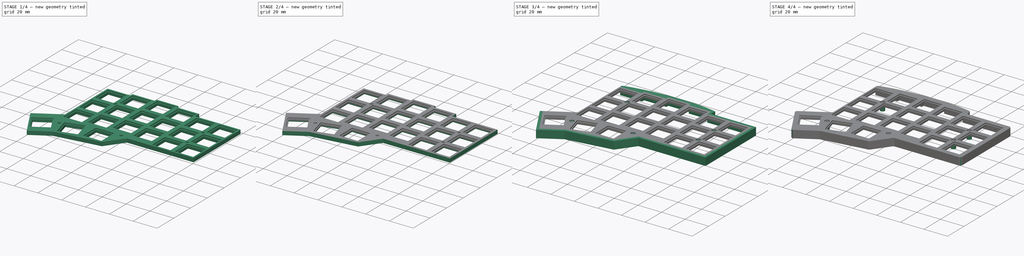
[diagram: build sequence overview — one tinted view per stage of 4, left to right]
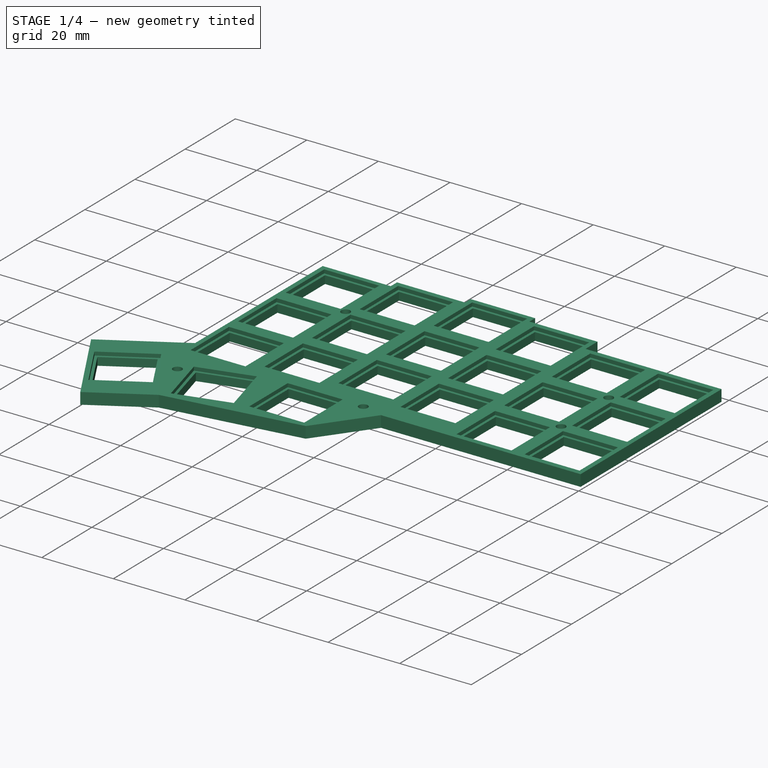
[diagram: stage 1 of 4 — iso view after this stage's code; geometry added in this stage tinted green]
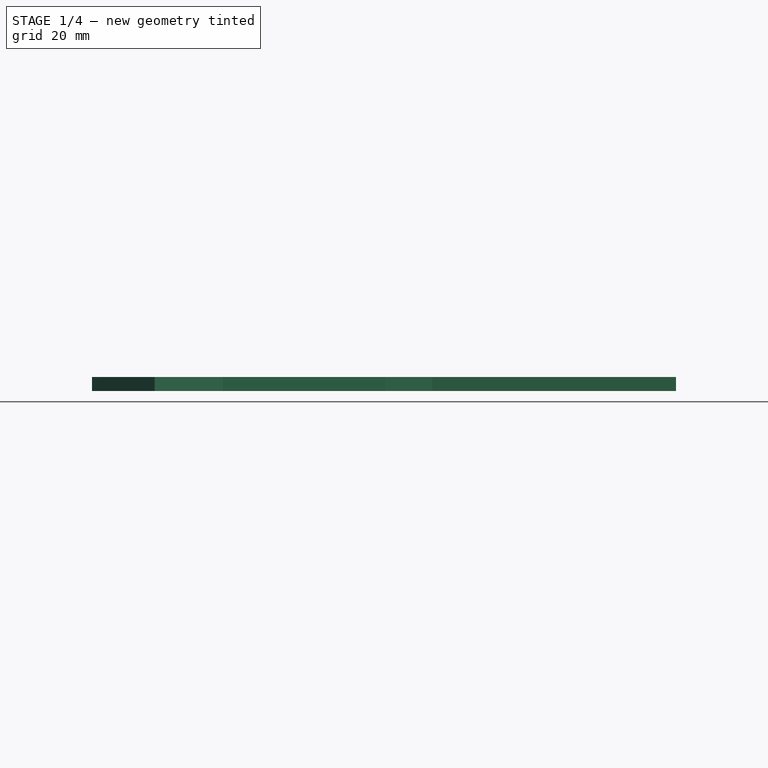
[diagram: stage 1 of 4 — front view after this stage's code; geometry added in this stage tinted green]
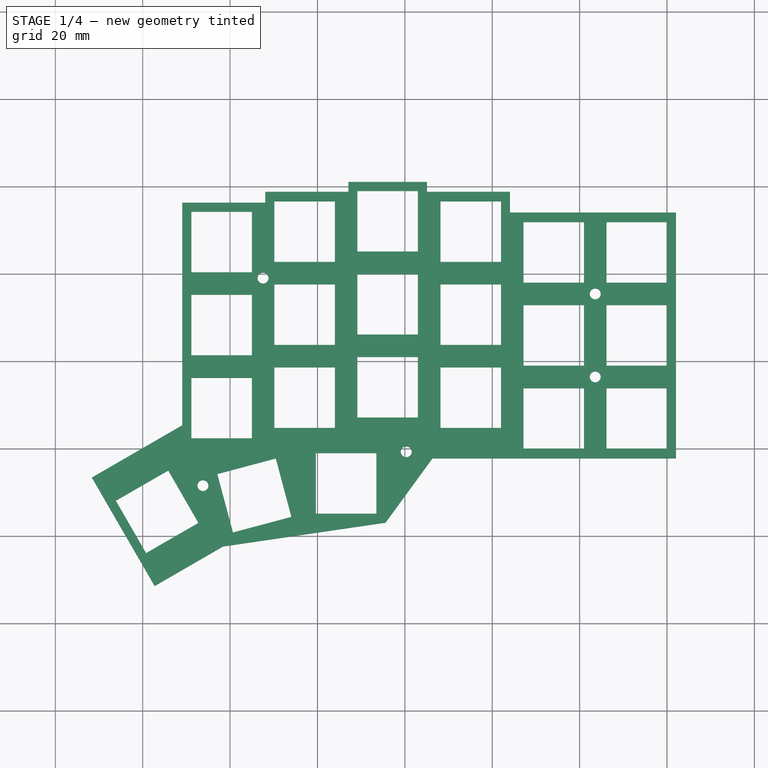
[diagram: stage 1 of 4 — top view after this stage's code; geometry added in this stage tinted green]
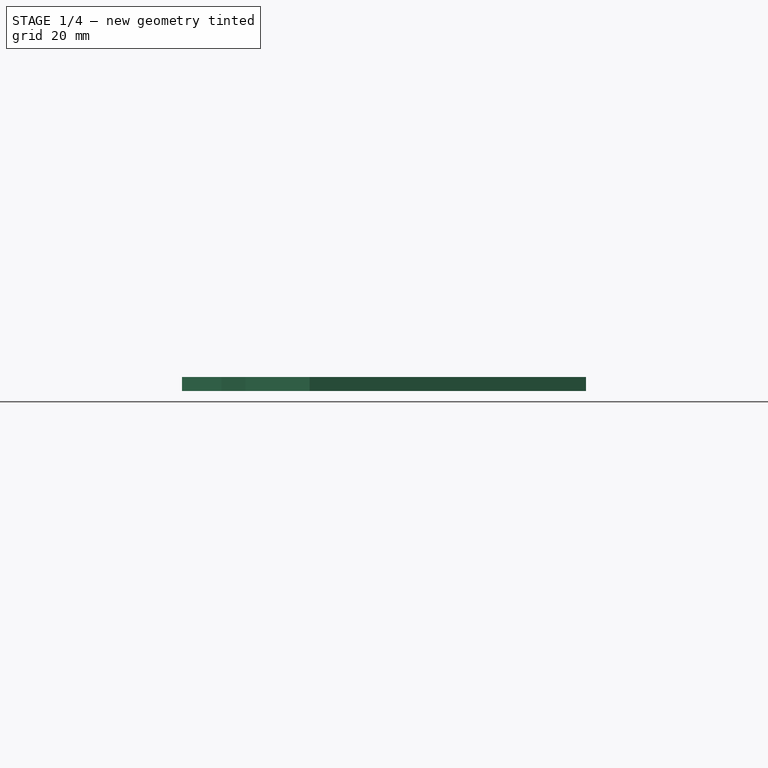
[diagram: stage 1 of 4 — right view after this stage's code; geometry added in this stage tinted green]
FCSTD DOCUMENT  (FreeCAD 2022.709R28846 (Git))
Label: faceplate
License: All rights reserved
LicenseURL: http://en.wikipedia.org/wiki/All_rights_reserved
objects: Sketcher::SketchObject×8, PartDesign::Pad×4, PartDesign::Pocket×4, Part::Offset2D×1, PartDesign::FeatureWrap×1, PartDesign::Fillet×1, PartDesign::Body×1
note: 39 computed .brp shape members not serialized (recipe doc carries the construction recipe); baked Part::Feature solids carry a one-line shape summary decoded from their .brp

FEATURE [Sketcher::SketchObject] Sketch
  ArcFitTolerance = 1e-06
  AttachmentSupport = -> [XY_Plane]
  FullyConstrained = true
  MapMode = 5
  Support = -> [XY_Plane]
  TreeRank = 11
  sketch-geometry (136):
    g0: LineSegment StartX=0 StartY=0 StartZ=0 EndX=-13.851 EndY=0 EndZ=0
    g1: LineSegment StartX=-13.851 StartY=0 StartZ=0 EndX=-13.851 EndY=13.851 EndZ=0
    g2: LineSegment StartX=-13.851 StartY=13.851 StartZ=0 EndX=0 EndY=13.851 EndZ=0
    g3: LineSegment StartX=0 StartY=13.851 StartZ=0 EndX=0 EndY=0 EndZ=0
    g4: LineSegment StartX=0 StartY=19.0014 StartZ=0 EndX=-13.851 EndY=19.0014 EndZ=0
    g5: LineSegment StartX=-13.851 StartY=19.0014 StartZ=0 EndX=-13.851 EndY=32.8524 EndZ=0
    g6: LineSegment StartX=-13.851 StartY=32.8524 StartZ=0 EndX=0 EndY=32.8524 EndZ=0
    g7: LineSegment StartX=0 StartY=32.8524 StartZ=0 EndX=0 EndY=19.0014 EndZ=0
    g8: LineSegment StartX=0 StartY=38.0027 StartZ=0 EndX=-13.851 EndY=38.0027 EndZ=0
    g9: LineSegment StartX=-13.851 StartY=38.0027 StartZ=0 EndX=-13.851 EndY=51.8537 EndZ=0
    g10: LineSegment StartX=-13.851 StartY=51.8537 StartZ=0 EndX=0 EndY=51.8537 EndZ=0
    g11: LineSegment StartX=0 StartY=51.8537 StartZ=0 EndX=0 EndY=38.0027 EndZ=0
    g12: LineSegment [constr] StartX=0 StartY=38.0027 StartZ=0 EndX=0 EndY=32.8524 EndZ=0
    g13: LineSegment [constr] StartX=0 StartY=19.0014 StartZ=0 EndX=0 EndY=13.851 EndZ=0
    g14: LineSegment StartX=-19.0019 StartY=0 StartZ=0 EndX=-32.8529 EndY=0 EndZ=0
    g15: LineSegment StartX=-32.8529 StartY=0 StartZ=0 EndX=-32.8529 EndY=13.851 EndZ=0
    g16: LineSegment StartX=-32.8529 StartY=13.851 StartZ=0 EndX=-19.0019 EndY=13.851 EndZ=0
    g17: LineSegment StartX=-19.0019 StartY=13.851 StartZ=0 EndX=-19.0019 EndY=0 EndZ=0
    g18: LineSegment StartX=-19.0019 StartY=19.0014 StartZ=0 EndX=-32.8529 EndY=19.0014 EndZ=0
    g19: LineSegment StartX=-32.8529 StartY=19.0014 StartZ=0 EndX=-32.8529 EndY=32.8524 EndZ=0
    g20: LineSegment StartX=-32.8529 StartY=32.8524 StartZ=0 EndX=-19.0019 EndY=32.8524 EndZ=0
    g21: LineSegment StartX=-19.0019 StartY=32.8524 StartZ=0 EndX=-19.0019 EndY=19.0014 EndZ=0
    g22: LineSegment StartX=-19.0019 StartY=38.0027 StartZ=0 EndX=-32.8529 EndY=38.0027 EndZ=0
    g23: LineSegment StartX=-32.8529 StartY=38.0027 StartZ=0 EndX=-32.8529 EndY=51.8537 EndZ=0
    g24: LineSegment StartX=-32.8529 StartY=51.8537 StartZ=0 EndX=-19.0019 EndY=51.8537 EndZ=0
    g25: LineSegment StartX=-19.0019 StartY=51.8537 StartZ=0 EndX=-19.0019 EndY=38.0027 EndZ=0
    g26: LineSegment [constr] StartX=-19.0019 StartY=38.0027 StartZ=0 EndX=-19.0019 EndY=32.8524 EndZ=0
    g27: LineSegment [constr] StartX=-19.0019 StartY=19.0014 StartZ=0 EndX=-19.0019 EndY=13.851 EndZ=0
    g28: LineSegment StartX=-51.8542 StartY=18.6013 StartZ=0 EndX=-38.0032 EndY=18.6013 EndZ=0
    g29: LineSegment StartX=-38.0032 StartY=18.6013 StartZ=0 EndX=-38.0032 EndY=4.75034 EndZ=0
    g30: LineSegment StartX=-38.0032 StartY=4.75034 StartZ=0 EndX=-51.8542 EndY=4.75034 EndZ=0
    g31: LineSegment StartX=-51.8542 StartY=4.75034 StartZ=0 EndX=-51.8542 EndY=18.6013 EndZ=0
    g32: LineSegment StartX=-51.8542 StartY=37.6027 StartZ=0 EndX=-38.0032 EndY=37.6027 EndZ=0
    g33: LineSegment StartX=-38.0032 StartY=37.6027 StartZ=0 EndX=-38.0032 EndY=23.7517 EndZ=0
    g34: LineSegment StartX=-38.0032 StartY=23.7517 StartZ=0 EndX=-51.8542 EndY=23.7517 EndZ=0
    g35: LineSegment StartX=-51.8542 StartY=23.7517 StartZ=0 EndX=-51.8542 EndY=37.6027 EndZ=0
    g36: LineSegment StartX=-51.8542 StartY=56.6041 StartZ=0 EndX=-38.0032 EndY=56.6041 EndZ=0
    g37: LineSegment StartX=-38.0032 StartY=56.6041 StartZ=0 EndX=-38.0032 EndY=42.7531 EndZ=0
    g38: LineSegment StartX=-38.0032 StartY=42.7531 StartZ=0 EndX=-51.8542 EndY=42.7531 EndZ=0
    g39: LineSegment StartX=-51.8542 StartY=42.7531 StartZ=0 EndX=-51.8542 EndY=56.6041 EndZ=0
    g40: LineSegment [constr] StartX=-38.0032 StartY=23.7517 StartZ=0 EndX=-38.0032 EndY=18.6013 EndZ=0
    g41: LineSegment [constr] StartX=-38.0032 StartY=42.7531 StartZ=0 EndX=-38.0032 EndY=37.6027 EndZ=0
    g42: LineSegment StartX=-70.8556 StartY=20.9765 StartZ=0 EndX=-57.0046 EndY=20.9765 EndZ=0
    g43: LineSegment StartX=-57.0046 StartY=20.9765 StartZ=0 EndX=-57.0046 EndY=7.12551 EndZ=0
    g44: LineSegment StartX=-57.0046 StartY=7.12551 StartZ=0 EndX=-70.8556 EndY=7.12551 EndZ=0
    g45: LineSegment StartX=-70.8556 StartY=7.12551 StartZ=0 EndX=-70.8556 EndY=20.9765 EndZ=0
    g46: LineSegment StartX=-70.8556 StartY=39.9779 StartZ=0 EndX=-57.0046 EndY=39.9779 EndZ=0
    g47: LineSegment StartX=-57.0046 StartY=39.9779 StartZ=0 EndX=-57.0046 EndY=26.1269 EndZ=0
    g48: LineSegment StartX=-57.0046 StartY=26.1269 StartZ=0 EndX=-70.8556 EndY=26.1269 EndZ=0
    g49: LineSegment StartX=-70.8556 StartY=26.1269 StartZ=0 EndX=-70.8556 EndY=39.9779 EndZ=0
    g50: LineSegment StartX=-70.8556 StartY=58.9792 StartZ=0 EndX=-57.0046 EndY=58.9792 EndZ=0
    g51: LineSegment StartX=-57.0046 StartY=58.9792 StartZ=0 EndX=-57.0046 EndY=45.1282 EndZ=0
    g52: LineSegment StartX=-57.0046 StartY=45.1282 StartZ=0 EndX=-70.8556 EndY=45.1282 EndZ=0
    g53: LineSegment StartX=-70.8556 StartY=45.1282 StartZ=0 EndX=-70.8556 EndY=58.9792 EndZ=0
    g54: LineSegment [constr] StartX=-57.0046 StartY=45.1282 StartZ=0 EndX=-57.0046 EndY=39.9779 EndZ=0
    g55: LineSegment [constr] StartX=-57.0046 StartY=26.1269 StartZ=0 EndX=-57.0046 EndY=20.9765 EndZ=0
    g56: LineSegment StartX=-89.857 StartY=18.6013 StartZ=0 EndX=-76.006 EndY=18.6013 EndZ=0
    g57: LineSegment StartX=-76.006 StartY=18.6013 StartZ=0 EndX=-76.006 EndY=4.75034 EndZ=0
    g58: LineSegment StartX=-76.006 StartY=4.75034 StartZ=0 EndX=-89.857 EndY=4.75034 EndZ=0
    g59: LineSegment StartX=-89.857 StartY=4.75034 StartZ=0 EndX=-89.857 EndY=18.6013 EndZ=0
    g60: LineSegment StartX=-89.857 StartY=37.6027 StartZ=0 EndX=-76.006 EndY=37.6027 EndZ=0
    g61: LineSegment StartX=-76.006 StartY=37.6027 StartZ=0 EndX=-76.006 EndY=23.7517 EndZ=0
    g62: LineSegment StartX=-76.006 StartY=23.7517 StartZ=0 EndX=-89.857 EndY=23.7517 EndZ=0
    g63: LineSegment StartX=-89.857 StartY=23.7517 StartZ=0 EndX=-89.857 EndY=37.6027 EndZ=0
    g64: LineSegment StartX=-89.857 StartY=56.6041 StartZ=0 EndX=-76.006 EndY=56.6041 EndZ=0
    g65: LineSegment StartX=-76.006 StartY=56.6041 StartZ=0 EndX=-76.006 EndY=42.7531 EndZ=0
    g66: LineSegment StartX=-76.006 StartY=42.7531 StartZ=0 EndX=-89.857 EndY=42.7531 EndZ=0
    g67: LineSegment StartX=-89.857 StartY=42.7531 StartZ=0 EndX=-89.857 EndY=56.6041 EndZ=0
    g68: LineSegment [constr] StartX=-76.006 StartY=23.7517 StartZ=0 EndX=-76.006 EndY=18.6013 EndZ=0
    g69: LineSegment [constr] StartX=-76.006 StartY=42.7531 StartZ=0 EndX=-76.006 EndY=37.6027 EndZ=0
    g70: LineSegment StartX=-108.858 StartY=16.2262 StartZ=0 EndX=-95.0073 EndY=16.2262 EndZ=0
    g71: LineSegment StartX=-95.0073 StartY=16.2262 StartZ=0 EndX=-95.0073 EndY=2.37517 EndZ=0
    g72: LineSegment StartX=-95.0073 StartY=2.37517 StartZ=0 EndX=-108.858 EndY=2.37517 EndZ=0
    g73: LineSegment StartX=-108.858 StartY=2.37517 StartZ=0 EndX=-108.858 EndY=16.2262 EndZ=0
    g74: LineSegment StartX=-108.858 StartY=35.2275 StartZ=0 EndX=-95.0073 EndY=35.2275 EndZ=0
    g75: LineSegment StartX=-95.0073 StartY=35.2275 StartZ=0 EndX=-95.0073 EndY=21.3765 EndZ=0
    g76: LineSegment StartX=-95.0073 StartY=21.3765 StartZ=0 EndX=-108.858 EndY=21.3765 EndZ=0
    g77: LineSegment StartX=-108.858 StartY=21.3765 StartZ=0 EndX=-108.858 EndY=35.2275 EndZ=0
    g78: LineSegment StartX=-108.858 StartY=54.2289 StartZ=0 EndX=-95.0073 EndY=54.2289 EndZ=0
    g79: LineSegment StartX=-95.0073 StartY=54.2289 StartZ=0 EndX=-95.0073 EndY=40.3779 EndZ=0
    g80: LineSegment StartX=-95.0073 StartY=40.3779 StartZ=0 EndX=-108.858 EndY=40.3779 EndZ=0
    g81: LineSegment StartX=-108.858 StartY=40.3779 StartZ=0 EndX=-108.858 EndY=54.2289 EndZ=0
    g82: LineSegment [constr] StartX=-95.0073 StartY=40.3779 StartZ=0 EndX=-95.0073 EndY=35.2275 EndZ=0
    g83: LineSegment [constr] StartX=-95.0073 StartY=21.3765 StartZ=0 EndX=-95.0073 EndY=16.2262 EndZ=0
    g84: LineSegment StartX=-80.3563 StartY=-1.02507 StartZ=0 EndX=-66.5053 EndY=-1.02507 EndZ=0
    g85: LineSegment StartX=-66.5053 StartY=-1.02507 StartZ=0 EndX=-66.5053 EndY=-14.8761 EndZ=0
    g86: LineSegment StartX=-66.5053 StartY=-14.8761 StartZ=0 EndX=-80.3563 EndY=-14.8761 EndZ=0
    g87: LineSegment StartX=-80.3563 StartY=-14.8761 StartZ=0 EndX=-80.3563 EndY=-1.02507 EndZ=0
    g88: LineSegment StartX=-89.5345 StartY=-2.22461 StartZ=0 EndX=-85.9631 EndY=-15.6073 EndZ=0
    g89: LineSegment StartX=-85.9631 StartY=-15.6073 StartZ=0 EndX=-99.3458 EndY=-19.1786 EndZ=0
    g90: LineSegment StartX=-99.3458 StartY=-19.1786 StartZ=0 EndX=-102.917 EndY=-5.79592 EndZ=0
    g91: LineSegment StartX=-102.917 StartY=-5.79592 StartZ=0 EndX=-89.5345 EndY=-2.22461 EndZ=0
    g92: LineSegment StartX=-114.147 StartY=-4.98625 StartZ=0 EndX=-107.23 EndY=-16.9863 EndZ=0
    g93: LineSegment StartX=-107.23 StartY=-16.9863 StartZ=0 EndX=-119.23 EndY=-23.9036 EndZ=0
    g94: LineSegment StartX=-119.23 StartY=-23.9036 StartZ=0 EndX=-126.147 EndY=-11.9036 EndZ=0
    g95: LineSegment StartX=-126.147 StartY=-11.9036 StartZ=0 EndX=-114.147 EndY=-4.98625 EndZ=0
    g96: LineSegment StartX=2.06959 StartY=-2.20994 StartZ=0 EndX=2.06959 EndY=54.0441 EndZ=0
    g97: LineSegment StartX=2.06959 StartY=54.0441 StartZ=0 EndX=-35.9331 EndY=54.0441 EndZ=0
    g98: LineSegment StartX=-35.9331 StartY=54.0441 StartZ=0 EndX=-35.9331 EndY=58.7944 EndZ=0
    g99: LineSegment StartX=-35.9331 StartY=58.7944 StartZ=0 EndX=-54.9345 EndY=58.7944 EndZ=0
    g100: LineSegment StartX=-54.9345 StartY=58.7944 StartZ=0 EndX=-54.9345 EndY=61.0446 EndZ=0
    g101: LineSegment StartX=-54.9345 StartY=61.0446 StartZ=0 EndX=-72.9358 EndY=61.0446 EndZ=0
    g102: LineSegment StartX=-72.9358 StartY=61.0446 StartZ=0 EndX=-72.9358 EndY=58.7944 EndZ=0
    g103: LineSegment StartX=-72.9358 StartY=58.7944 StartZ=0 EndX=-91.9371 EndY=58.7944 EndZ=0
    g104: LineSegment StartX=-91.9371 StartY=58.7944 StartZ=0 EndX=-91.9371 EndY=56.2942 EndZ=0
    g105: LineSegment StartX=-91.9371 StartY=56.2942 StartZ=0 EndX=-110.938 EndY=56.2942 EndZ=0
    g106: LineSegment StartX=-110.938 StartY=56.2942 StartZ=0 EndX=-110.938 EndY=5.35092 EndZ=0
    g107: LineSegment StartX=-110.938 StartY=5.35092 StartZ=0 EndX=-131.614 EndY=-6.61191 EndZ=0
    g108: LineSegment StartX=-131.614 StartY=-6.61191 StartZ=0 EndX=-117.258 EndY=-31.4235 EndZ=0
    g109: LineSegment StartX=-117.258 StartY=-31.4235 StartZ=0 EndX=-101.632 EndY=-22.3827 EndZ=0
    g110: LineSegment StartX=-101.632 StartY=-22.3827 StartZ=0 EndX=-64.415 EndY=-16.9207 EndZ=0
    g111: LineSegment StartX=-64.415 StartY=-16.9207 StartZ=0 EndX=-53.681 EndY=-2.20994 EndZ=0
    g112: LineSegment StartX=-53.681 StartY=-2.20994 StartZ=0 EndX=2.06959 EndY=-2.20994 EndZ=0
    g113: LineSegment [constr] StartX=-19.0019 StartY=35.4275 StartZ=0 EndX=-16.4264 EndY=35.4275 EndZ=0
    g114: LineSegment [constr] StartX=-13.851 StartY=38.0027 StartZ=0 EndX=-13.851 EndY=35.4275 EndZ=0
    g115: LineSegment [constr] StartX=-13.851 StartY=35.4275 StartZ=0 EndX=-16.4264 EndY=35.4275 EndZ=0
    g116: Circle CenterX=-16.4264 CenterY=35.4275 CenterZ=0 NormalX=0 NormalY=0 NormalZ=1 AngleXU=0 Radius=1.25
    g117: LineSegment [constr] StartX=-19.0019 StartY=19.0014 StartZ=0 EndX=-13.851 EndY=13.851 EndZ=0
    g118: LineSegment [constr] StartX=-13.851 StartY=19.0014 StartZ=0 EndX=-19.0019 EndY=13.851 EndZ=0
    g119: Circle CenterX=-16.4264 CenterY=16.4262 CenterZ=0 NormalX=0 NormalY=0 NormalZ=1 AngleXU=0 Radius=1.25
    g120: LineSegment [constr] StartX=-108.858 StartY=54.2289 StartZ=0 EndX=-95.0073 EndY=40.3779 EndZ=0
    g121: LineSegment [constr] StartX=-95.0073 StartY=54.2289 StartZ=0 EndX=-108.858 EndY=40.3779 EndZ=0
    g122: LineSegment [constr] StartX=-89.857 StartY=56.6041 StartZ=0 EndX=-76.006 EndY=42.7531 EndZ=0
    g123: LineSegment [constr] StartX=-76.006 StartY=56.6041 StartZ=0 EndX=-89.857 EndY=42.7531 EndZ=0
    g124: LineSegment [constr] StartX=-108.858 StartY=35.2275 StartZ=0 EndX=-95.0073 EndY=21.3765 EndZ=0
    g125: LineSegment [constr] StartX=-95.0073 StartY=35.2275 StartZ=0 EndX=-108.858 EndY=21.3765 EndZ=0
    g126: LineSegment [constr] StartX=-89.857 StartY=37.6027 StartZ=0 EndX=-76.006 EndY=23.7517 EndZ=0
    g127: LineSegment [constr] StartX=-76.006 StartY=37.6027 StartZ=0 EndX=-89.857 EndY=23.7517 EndZ=0
    g128: LineSegment [constr] StartX=-101.933 StartY=47.3034 StartZ=0 EndX=-82.9315 EndY=30.6772 EndZ=0
    g129: LineSegment [constr] StartX=-101.933 StartY=28.302 StartZ=0 EndX=-82.9315 EndY=49.6786 EndZ=0
    g130: LineSegment [constr] StartX=-80.3563 StartY=-1.02507 StartZ=0 EndX=-66.5053 EndY=-14.8761 EndZ=0
    g131: LineSegment [constr] StartX=-66.5053 StartY=-1.02507 StartZ=0 EndX=-80.3563 EndY=-14.8761 EndZ=0
    g132: Circle CenterX=-106.201 CenterY=-8.45994 CenterZ=0 NormalX=0 NormalY=0 NormalZ=1 AngleXU=0 Radius=1.25
    g133: Circle CenterX=-59.681 CenterY=-0.70994 CenterZ=0 NormalX=0 NormalY=0 NormalZ=1 AngleXU=0 Radius=1.25
    g134: GeomPoint [constr] X=-92.4322 Y=38.9903 Z=0
    g135: Circle CenterX=-92.4562 CenterY=39.0423 CenterZ=0 NormalX=0 NormalY=0 NormalZ=1 AngleXU=0 Radius=1.25
  constraints (382):
    c: Coincident(g0,g1)
    c: Coincident(g1,g2)
    c: Coincident(g2,g3)
    c: Coincident(g3,g0)
    c: Horizontal(g0)
    c: Horizontal(g2)
    c: Vertical(g1)
    c: Vertical(g3)
    c: Coincident(g0,g-1)
    c: Coincident(g4,g5)
    c: Coincident(g5,g6)
    c: Coincident(g6,g7)
    c: Coincident(g7,g4)
    c: Horizontal(g4)
    c: Horizontal(g6)
    c: Vertical(g5)
    c: Vertical(g7)
    c: PointOnObject(g4,g-2)
    c: Coincident(g8,g9)
    c: Coincident(g9,g10)
    c: Coincident(g10,g11)
    c: Coincident(g11,g8)
    c: Horizontal(g8)
    c: Horizontal(g10)
    c: Vertical(g9)
    c: Vertical(g11)
    c: PointOnObject(g8,g-2)
    c: Coincident(g12,g8)
    c: Coincident(g12,g6)
    c: Coincident(g13,g4)
    c: Coincident(g13,g2)
    c: Equal(g3,g2)
    c: Equal(g2,g7)
    c: Equal(g7,g6)
    c: Equal(g6,g11)
    c: Equal(g11,g10)
    c: DistanceY(g3,g3) = 13.851
    c: DistanceY(g13,g13) = 5.15036
    c: Equal(g13,g12)
    c: Coincident(g14,g15)
    c: Coincident(g15,g16)
    c: Coincident(g16,g17)
    c: Coincident(g17,g14)
    c: Horizontal(g14)
    c: Horizontal(g16)
    c: Vertical(g15)
    c: Vertical(g17)
    c: PointOnObject(g14,g-1)
    c: Coincident(g18,g19)
    c: Coincident(g19,g20)
    c: Coincident(g20,g21)
    c: Coincident(g21,g18)
    c: Horizontal(g18)
    c: Horizontal(g20)
    c: Vertical(g19)
    c: Vertical(g21)
    c: Coincident(g22,g23)
    c: Coincident(g23,g24)
    c: Coincident(g24,g25)
    c: Coincident(g25,g22)
    c: Horizontal(g22)
    c: Horizontal(g24)
    c: Vertical(g23)
    c: Vertical(g25)
    c: Coincident(g26,g22)
    c: Coincident(g26,g20)
    c: Coincident(g27,g18)
    c: Coincident(g27,g16)
    c: Vertical(g27)
    c: Vertical(g26)
    c: Equal(g17,g3)
    c: Equal(g3,g16)
    c: Equal(g16,g21)
    c: Equal(g21,g20)
    c: Equal(g20,g25)
    c: Equal(g25,g24)
    c: Equal(g27,g26)
    c: Equal(g26,g13)
    c: DistanceX(g14,g0) = 5.15087
    c: Coincident(g28,g29)
    c: Coincident(g29,g30)
    c: Coincident(g30,g31)
    c: Coincident(g31,g28)
    c: Horizontal(g28)
    c: Horizontal(g30)
    c: Vertical(g29)
    c: Vertical(g31)
    c: Coincident(g32,g33)
    c: Coincident(g33,g34)
    c: Coincident(g34,g35)
    c: Coincident(g35,g32)
    c: Horizontal(g32)
    c: Horizontal(g34)
    c: Vertical(g33)
    c: Vertical(g35)
    c: Coincident(g36,g37)
    c: Coincident(g37,g38)
    c: Coincident(g38,g39)
    c: Coincident(g39,g36)
    c: Horizontal(g36)
    c: Horizontal(g38)
    c: Vertical(g37)
    c: Vertical(g39)
    c: Equal(g29,g28)
    c: Equal(g28,g33)
    c: Equal(g33,g32)
    c: Equal(g32,g36)
    c: Equal(g36,g37)
    c: Equal(g37,g3)
    c: Coincident(g40,g33)
    c: Coincident(g40,g28)
    c: Vertical(g40)
    c: Coincident(g41,g37)
    c: Coincident(g41,g32)
    c: Vertical(g41)
    c: Equal(g41,g40)
    c: Equal(g40,g13)
    c: DistanceX(g29,g14) = 5.15036
    c: DistanceY(g14,g29) = 4.75034
    c: Coincident(g42,g43)
    c: Coincident(g43,g44)
    c: Coincident(g44,g45)
    c: Coincident(g45,g42)
    c: Horizontal(g42)
    c: Horizontal(g44)
    c: Vertical(g43)
    c: Vertical(g45)
    c: Coincident(g46,g47)
    c: Coincident(g47,g48)
    c: Coincident(g48,g49)
    c: Coincident(g49,g46)
    c: Horizontal(g46)
    c: Horizontal(g48)
    c: Vertical(g47)
    c: Vertical(g49)
    c: Coincident(g50,g51)
    c: Coincident(g51,g52)
    c: Coincident(g52,g53)
    c: Coincident(g53,g50)
    c: Horizontal(g50)
    c: Horizontal(g52)
    c: Vertical(g51)
    c: Vertical(g53)
    c: Coincident(g54,g51)
    c: Coincident(g54,g46)
    c: Coincident(g55,g47)
    c: Coincident(g55,g42)
    c: Vertical(g55)
    c: Vertical(g54)
    c: Equal(g50,g51)
    c: Equal(g51,g46)
    c: Equal(g46,g47)
    c: Equal(g47,g42)
    c: Equal(g42,g43)
    c: Equal(g43,g3)
    c: Equal(g55,g54)
    c: Equal(g54,g13)
    c: DistanceX(g43,g30) = 5.15037
    c: DistanceY(g30,g43) = 2.37517
    c: Coincident(g56,g57)
    c: Coincident(g57,g58)
    c: Coincident(g58,g59)
    c: Coincident(g59,g56)
    c: Horizontal(g56)
    c: Horizontal(g58)
    c: Vertical(g57)
    c: Vertical(g59)
    c: Coincident(g60,g61)
    c: Coincident(g61,g62)
    c: Coincident(g62,g63)
    c: Coincident(g63,g60)
    c: Horizontal(g60)
    c: Horizontal(g62)
    c: Vertical(g61)
    c: Vertical(g63)
    c: Coincident(g64,g65)
    c: Coincident(g65,g66)
    c: Coincident(g66,g67)
    c: Coincident(g67,g64)
    c: Horizontal(g64)
    c: Horizontal(g66)
    c: Vertical(g65)
    c: Vertical(g67)
    c: Equal(g57,g56)
    c: Equal(g56,g61)
    c: Equal(g61,g60)
    c: Equal(g60,g65)
    c: Equal(g65,g64)
    c: Equal(g64,g3)
    c: Coincident(g68,g61)
    c: Coincident(g68,g56)
    c: Vertical(g68)
    c: Coincident(g69,g65)
    c: Coincident(g69,g60)
    c: Vertical(g69)
    c: Equal(g68,g69)
    c: Equal(g69,g13)
    c: DistanceX(g57,g44) = 5.15037
    c: DistanceY(g57,g44) = 2.37517
    c: Coincident(g70,g71)
    c: Coincident(g71,g72)
    c: Coincident(g72,g73)
    c: Coincident(g73,g70)
    c: Horizontal(g70)
    c: Horizontal(g72)
    c: Vertical(g71)
    c: Vertical(g73)
    c: Coincident(g74,g75)
    c: Coincident(g75,g76)
    c: Coincident(g76,g77)
    c: Coincident(g77,g74)
    c: Horizontal(g74)
    c: Horizontal(g76)
    c: Vertical(g75)
    c: Vertical(g77)
    c: Coincident(g78,g79)
    c: Coincident(g79,g80)
    c: Coincident(g80,g81)
    c: Coincident(g81,g78)
    c: Horizontal(g78)
    c: Horizontal(g80)
    c: Vertical(g79)
    c: Vertical(g81)
    c: Equal(g79,g78)
    c: Equal(g78,g74)
    c: Equal(g74,g75)
    c: Equal(g75,g70)
    c: Equal(g70,g71)
    c: Equal(g71,g3)
    c: Coincident(g82,g79)
    c: Coincident(g82,g74)
    c: Vertical(g82)
    c: Coincident(g83,g75)
    c: Coincident(g83,g70)
    c: Vertical(g83)
    c: Equal(g82,g83)
    c: Equal(g83,g13)
    c: DistanceX(g71,g58) = 5.15037
    c: DistanceY(g71,g58) = 2.37517
    c: Coincident(g84,g85)
    c: Coincident(g85,g86)
    c: Coincident(g86,g87)
    c: Coincident(g87,g84)
    c: Horizontal(g84)
    c: Horizontal(g86)
    c: Vertical(g85)
    c: Vertical(g87)
    c: Equal(g85,g84)
    c: Equal(g84,g3)
    c: DistanceX(g84,g57) = 4.3503
    c: DistanceY(g84,g57) = 5.77541
    c: Coincident(g88,g89)
    c: Coincident(g89,g90)
    c: Coincident(g90,g91)
    c: Coincident(g91,g88)
    c: Coincident(g92,g93)
    c: Coincident(g93,g94)
    c: Coincident(g94,g95)
    c: Coincident(g95,g92)
    c: Perpendicular(g91,g88)
    c: Perpendicular(g90,g91)
    c: Perpendicular(g89,g90)
    c: Equal(g88,g89)
    c: Equal(g89,g3)
    c: Equal(g92,g93)
    c: Equal(g93,g3)
    c: Perpendicular(g92,g95)
    c: Perpendicular(g92,g93)
    c: Perpendicular(g94,g95)
    c: Angle(g72,g91) = 0.260784
    c: DistanceX(g71,g88) = 5.47288
    c: DistanceY(g88,g71) = 4.59978
    c: Angle(g72,g95) = 0.522916
    c: DistanceX(g92,g72) = 5.28873
    c: DistanceY(g92,g72) = 7.36142
    c: Vertical(g96)
    c: DistanceY(g96,g0) = 2.20994
    c: DistanceX(g0,g96) = 2.06959
    c: DistanceY(g96,g96) = 56.254
    c: Coincident(g97,g96)
    c: Horizontal(g97)
    c: DistanceX(g97,g97) = 38.0027
    c: Coincident(g98,g97)
    c: Vertical(g98)
    c: DistanceY(g98,g98) = 4.75034
    c: Coincident(g99,g98)
    c: Horizontal(g99)
    c: DistanceX(g99,g99) = 19.0014
    c: Coincident(g100,g99)
    c: Vertical(g100)
    c: Coincident(g101,g100)
    c: Horizontal(g101)
    c: Coincident(g102,g101)
    c: Vertical(g102)
    c: Coincident(g103,g102)
    c: Horizontal(g103)
    c: Coincident(g104,g103)
    c: Vertical(g104)
    c: Coincident(g105,g104)
    c: Horizontal(g105)
    c: DistanceY(g100,g100) = 2.25016
    c: DistanceX(g101,g101) = 18.0013
    c: DistanceY(g102,g102) = 2.25016
    c: DistanceX(g103,g103) = 19.0013
    c: DistanceY(g104,g104) = 2.50018
    c: Coincident(g106,g105)
    c: Vertical(g106)
    c: Coincident(g107,g106)
    c: Coincident(g108,g107)
    c: Coincident(g109,g108)
    c: Coincident(g110,g109)
    c: Coincident(g111,g110)
    c: Coincident(g112,g111)
    c: Coincident(g112,g96)
    c: Horizontal(g112)
    c: DistanceX(g105,g105) = 19.0005
    c: DistanceY(g106,g106) = 50.9433
    c: Distance(g107) = 23.8874
    c: Angle(g106,g107) = 2.09532
    c: Perpendicular(g107,g108)
    c: Perpendicular(g109,g108)
    c: Distance(g108) = 28.6653
    c: Distance(g109) = 18.0527
    c: Angle(g111,g112) = 2.20116
    c: DistanceX(g112,g112) = 55.7506
    c: Distance(g111) = 18.2106
    c: PointOnObject(g113,g26)
    c: Symmetric(g22,g20,g113)
    c: Coincident(g114,g8)
    c: Vertical(g114)
    c: Coincident(g115,g114)
    c: Coincident(g115,g113)
    c: Horizontal(g115)
    c: Equal(g113,g115)
    c: Coincident(g116,g113)
    c: Coincident(g117,g18)
    c: Coincident(g117,g1)
    c: Coincident(g118,g4)
    c: Coincident(g118,g16)
    c: PointOnObject(g119,g117)
    c: PointOnObject(g119,g118)
    c: Coincident(g120,g78)
    c: Coincident(g120,g79)
    c: Coincident(g121,g78)
    c: Coincident(g121,g80)
    c: Coincident(g122,g64)
    c: Coincident(g122,g65)
    c: Coincident(g123,g64)
    c: Coincident(g123,g66)
    c: Coincident(g124,g74)
    c: Coincident(g124,g75)
    c: Coincident(g125,g74)
    c: Coincident(g125,g76)
    c: Coincident(g126,g60)
    c: Coincident(g126,g61)
    c: Coincident(g127,g60)
    c: Coincident(g127,g62)
    c: PointOnObject(g128,g120)
    c: PointOnObject(g128,g126)
    c: PointOnObject(g128,g121)
    c: PointOnObject(g128,g127)
    c: PointOnObject(g129,g124)
    c: PointOnObject(g129,g122)
    c: PointOnObject(g129,g123)
    c: PointOnObject(g129,g125)
    c: Coincident(g130,g84)
    c: Coincident(g130,g85)
    c: Coincident(g131,g84)
    c: Coincident(g131,g86)
    c: DistanceY(g111,g133) = 1.5
    c: DistanceX(g133,g111) = 6
    c: DistanceX(g132,g111) = 52.52
    c: DistanceY(g132,g111) = 6.25
    c: PointOnObject(g134,g128)
    c: PointOnObject(g134,g129)
    c: DistanceY(g134,g135) = 0.052
    c: DistanceX(g135,g134) = 0.024
    c: Equal(g132,g133)
    c: Equal(g133,g135)
    c: Equal(g135,g116)
    c: Equal(g116,g119)
    c: Diameter(g116) = 2.5
FEATURE [PartDesign::Pad] Pad
  ClaimChildren = false
  Direction = (1,1,1)
  Fit = 0
  FitJoin = 0
  InnerFit = 0
  InnerFitJoin = 0
  InnerTaperAngle = 0
  InnerTaperAngleRev = 0
  Length = 3.2
  Length2 = 100
  Linearize = true
  NewSolid = false
  Profile = -> Sketch
  Suppress = false
  TreeRank = 12
  Type = 0
  _ProfileBasedVersion = 1
FEATURE [Sketcher::SketchObject] Sketch001
  ArcFitTolerance = 1e-06
  AttachmentSupport = -> [Pad]
  ExternalGeometry = -> [Pad]
  FullyConstrained = true
  MapMode = 5
  Placement = pos=(0,0,3.2) rot=(0,0,1;0rad)
  Support = -> [Pad]
  TreeRank = 13
  sketch-geometry (126):
    g0: LineSegment StartX=-109.608 StartY=54.9789 StartZ=0 EndX=-94.2573 EndY=54.9789 EndZ=0
    g1: LineSegment StartX=-94.2573 StartY=54.9789 StartZ=0 EndX=-94.2573 EndY=39.6279 EndZ=0
    g2: LineSegment StartX=-94.2573 StartY=39.6279 StartZ=0 EndX=-109.608 EndY=39.6279 EndZ=0
    g3: LineSegment StartX=-109.608 StartY=39.6279 StartZ=0 EndX=-109.608 EndY=54.9789 EndZ=0
    g4: LineSegment StartX=-90.607 StartY=57.3541 StartZ=0 EndX=-75.256 EndY=57.3541 EndZ=0
    g5: LineSegment StartX=-75.256 StartY=57.3541 StartZ=0 EndX=-75.256 EndY=42.0031 EndZ=0
    g6: LineSegment StartX=-75.256 StartY=42.0031 StartZ=0 EndX=-90.607 EndY=42.0031 EndZ=0
    g7: LineSegment StartX=-90.607 StartY=42.0031 StartZ=0 EndX=-90.607 EndY=57.3541 EndZ=0
    g8: LineSegment StartX=-109.608 StartY=35.9775 StartZ=0 EndX=-94.2573 EndY=35.9775 EndZ=0
    g9: LineSegment StartX=-94.2573 StartY=35.9775 StartZ=0 EndX=-94.2573 EndY=20.6265 EndZ=0
    g10: LineSegment StartX=-94.2573 StartY=20.6265 StartZ=0 EndX=-109.608 EndY=20.6265 EndZ=0
    g11: LineSegment StartX=-109.608 StartY=20.6265 StartZ=0 EndX=-109.608 EndY=35.9775 EndZ=0
    g12: LineSegment StartX=-109.608 StartY=16.9762 StartZ=0 EndX=-94.2573 EndY=16.9762 EndZ=0
    g13: LineSegment StartX=-94.2573 StartY=16.9762 StartZ=0 EndX=-94.2573 EndY=1.62517 EndZ=0
    g14: LineSegment StartX=-94.2573 StartY=1.62517 StartZ=0 EndX=-109.608 EndY=1.62517 EndZ=0
    g15: LineSegment StartX=-109.608 StartY=1.62517 StartZ=0 EndX=-109.608 EndY=16.9762 EndZ=0
    g16: LineSegment StartX=-90.607 StartY=19.3513 StartZ=0 EndX=-75.256 EndY=19.3513 EndZ=0
    g17: LineSegment StartX=-75.256 StartY=19.3513 StartZ=0 EndX=-75.256 EndY=4.00034 EndZ=0
    g18: LineSegment StartX=-75.256 StartY=4.00034 StartZ=0 EndX=-90.607 EndY=4.00034 EndZ=0
    g19: LineSegment StartX=-90.607 StartY=4.00034 StartZ=0 EndX=-90.607 EndY=19.3513 EndZ=0
    g20: LineSegment StartX=-90.607 StartY=38.3527 StartZ=0 EndX=-75.256 EndY=38.3527 EndZ=0
    g21: LineSegment StartX=-75.256 StartY=38.3527 StartZ=0 EndX=-75.256 EndY=23.0017 EndZ=0
    g22: LineSegment StartX=-75.256 StartY=23.0017 StartZ=0 EndX=-90.607 EndY=23.0017 EndZ=0
    g23: LineSegment StartX=-90.607 StartY=23.0017 StartZ=0 EndX=-90.607 EndY=38.3527 EndZ=0
    g24: LineSegment StartX=-71.6056 StartY=59.7292 StartZ=0 EndX=-56.2546 EndY=59.7292 EndZ=0
    g25: LineSegment StartX=-56.2546 StartY=59.7292 StartZ=0 EndX=-56.2546 EndY=44.3782 EndZ=0
    g26: LineSegment StartX=-56.2546 StartY=44.3782 StartZ=0 EndX=-71.6056 EndY=44.3782 EndZ=0
    g27: LineSegment StartX=-71.6056 StartY=44.3782 StartZ=0 EndX=-71.6056 EndY=59.7292 EndZ=0
    g28: LineSegment StartX=-71.6056 StartY=40.7279 StartZ=0 EndX=-56.2546 EndY=40.7279 EndZ=0
    g29: LineSegment StartX=-56.2546 StartY=40.7279 StartZ=0 EndX=-56.2546 EndY=25.3769 EndZ=0
    g30: LineSegment StartX=-56.2546 StartY=25.3769 StartZ=0 EndX=-71.6056 EndY=25.3769 EndZ=0
    g31: LineSegment StartX=-71.6056 StartY=25.3769 StartZ=0 EndX=-71.6056 EndY=40.7279 EndZ=0
    g32: LineSegment StartX=-71.6056 StartY=21.7265 StartZ=0 EndX=-56.2546 EndY=21.7265 EndZ=0
    g33: LineSegment StartX=-56.2546 StartY=21.7265 StartZ=0 EndX=-56.2546 EndY=6.37551 EndZ=0
    g34: LineSegment StartX=-56.2546 StartY=6.37551 StartZ=0 EndX=-71.6056 EndY=6.37551 EndZ=0
    g35: LineSegment StartX=-71.6056 StartY=6.37551 StartZ=0 EndX=-71.6056 EndY=21.7265 EndZ=0
    g36: LineSegment StartX=-52.6042 StartY=19.3513 StartZ=0 EndX=-37.2532 EndY=19.3513 EndZ=0
    g37: LineSegment StartX=-37.2532 StartY=19.3513 StartZ=0 EndX=-37.2532 EndY=4.00034 EndZ=0
    g38: LineSegment StartX=-37.2532 StartY=4.00034 StartZ=0 EndX=-52.6042 EndY=4.00034 EndZ=0
    g39: LineSegment StartX=-52.6042 StartY=4.00034 StartZ=0 EndX=-52.6042 EndY=19.3513 EndZ=0
    g40: LineSegment StartX=-52.6042 StartY=38.3527 StartZ=0 EndX=-37.2532 EndY=38.3527 EndZ=0
    g41: LineSegment StartX=-37.2532 StartY=38.3527 StartZ=0 EndX=-37.2532 EndY=23.0017 EndZ=0
    g42: LineSegment StartX=-37.2532 StartY=23.0017 StartZ=0 EndX=-52.6042 EndY=23.0017 EndZ=0
    g43: LineSegment StartX=-52.6042 StartY=23.0017 StartZ=0 EndX=-52.6042 EndY=38.3527 EndZ=0
    g44: LineSegment StartX=-52.6042 StartY=57.3541 StartZ=0 EndX=-37.2532 EndY=57.3541 EndZ=0
    g45: LineSegment StartX=-37.2532 StartY=57.3541 StartZ=0 EndX=-37.2532 EndY=42.0031 EndZ=0
    g46: LineSegment StartX=-37.2532 StartY=42.0031 StartZ=0 EndX=-52.6042 EndY=42.0031 EndZ=0
    g47: LineSegment StartX=-52.6042 StartY=42.0031 StartZ=0 EndX=-52.6042 EndY=57.3541 EndZ=0
    g48: LineSegment StartX=-33.6029 StartY=14.601 StartZ=0 EndX=-18.2519 EndY=14.601 EndZ=0
    g49: LineSegment StartX=-18.2519 StartY=14.601 StartZ=0 EndX=-18.2519 EndY=-0.75 EndZ=0
    g50: LineSegment StartX=-18.2519 StartY=-0.75 StartZ=0 EndX=-33.6029 EndY=-0.75 EndZ=0
    g51: LineSegment StartX=-33.6029 StartY=-0.75 StartZ=0 EndX=-33.6029 EndY=14.601 EndZ=0
    g52: LineSegment StartX=-33.6029 StartY=33.6024 StartZ=0 EndX=-18.2519 EndY=33.6024 EndZ=0
    g53: LineSegment StartX=-18.2519 StartY=33.6024 StartZ=0 EndX=-18.2519 EndY=18.2514 EndZ=0
    g54: LineSegment StartX=-18.2519 StartY=18.2514 StartZ=0 EndX=-33.6029 EndY=18.2514 EndZ=0
    g55: LineSegment StartX=-33.6029 StartY=18.2514 StartZ=0 EndX=-33.6029 EndY=33.6024 EndZ=0
    g56: LineSegment StartX=-33.6029 StartY=52.6037 StartZ=0 EndX=-18.2519 EndY=52.6037 EndZ=0
    g57: LineSegment StartX=-18.2519 StartY=52.6037 StartZ=0 EndX=-18.2519 EndY=37.2527 EndZ=0
    g58: LineSegment StartX=-18.2519 StartY=37.2527 StartZ=0 EndX=-33.6029 EndY=37.2527 EndZ=0
    g59: LineSegment StartX=-33.6029 StartY=37.2527 StartZ=0 EndX=-33.6029 EndY=52.6037 EndZ=0
    g60: LineSegment StartX=-14.601 StartY=52.6037 StartZ=0 EndX=0.75 EndY=52.6037 EndZ=0
    g61: LineSegment StartX=0.75 StartY=52.6037 StartZ=0 EndX=0.75 EndY=37.2527 EndZ=0
    g62: LineSegment StartX=0.75 StartY=37.2527 StartZ=0 EndX=-14.601 EndY=37.2527 EndZ=0
    g63: LineSegment StartX=-14.601 StartY=37.2527 StartZ=0 EndX=-14.601 EndY=52.6037 EndZ=0
    g64: LineSegment StartX=-14.601 StartY=33.6024 StartZ=0 EndX=0.75 EndY=33.6024 EndZ=0
    g65: LineSegment StartX=0.75 StartY=33.6024 StartZ=0 EndX=0.75 EndY=18.2514 EndZ=0
    g66: LineSegment StartX=0.75 StartY=18.2514 StartZ=0 EndX=-14.601 EndY=18.2514 EndZ=0
    g67: LineSegment StartX=-14.601 StartY=18.2514 StartZ=0 EndX=-14.601 EndY=33.6024 EndZ=0
    g68: LineSegment StartX=-14.601 StartY=14.601 StartZ=0 EndX=0.75 EndY=14.601 EndZ=0
    g69: LineSegment StartX=0.75 StartY=14.601 StartZ=0 EndX=0.75 EndY=-0.75 EndZ=0
    g70: LineSegment StartX=0.75 StartY=-0.75 StartZ=0 EndX=-14.601 EndY=-0.75 EndZ=0
    g71: LineSegment StartX=-14.601 StartY=-0.75 StartZ=0 EndX=-14.601 EndY=14.601 EndZ=0
    g72: LineSegment StartX=-81.1063 StartY=-0.27507 StartZ=0 EndX=-65.7553 EndY=-0.27507 EndZ=0
    g73: LineSegment StartX=-65.7553 StartY=-0.27507 StartZ=0 EndX=-65.7553 EndY=-15.6261 EndZ=0
    g74: LineSegment StartX=-65.7553 StartY=-15.6261 StartZ=0 EndX=-81.1063 EndY=-15.6261 EndZ=0
    g75: LineSegment StartX=-81.1063 StartY=-15.6261 StartZ=0 EndX=-81.1063 EndY=-0.27507 EndZ=0
    g76: LineSegment [constr] StartX=-109.608 StartY=54.9789 StartZ=0 EndX=-108.858 EndY=54.2289 EndZ=0
    g77: LineSegment [constr] StartX=-95.0073 StartY=40.3779 StartZ=0 EndX=-94.2573 EndY=39.6279 EndZ=0
    g78: LineSegment [constr] StartX=-90.607 StartY=57.3541 StartZ=0 EndX=-89.857 EndY=56.6041 EndZ=0
    g79: LineSegment [constr] StartX=-76.006 StartY=42.7531 StartZ=0 EndX=-75.256 EndY=42.0031 EndZ=0
    g80: LineSegment [constr] StartX=-71.6056 StartY=59.7292 StartZ=0 EndX=-70.8556 EndY=58.9792 EndZ=0
    g81: LineSegment [constr] StartX=-57.0046 StartY=45.1282 StartZ=0 EndX=-56.2546 EndY=44.3782 EndZ=0
    g82: LineSegment [constr] StartX=-109.608 StartY=35.9775 StartZ=0 EndX=-108.858 EndY=35.2275 EndZ=0
    g83: LineSegment [constr] StartX=-95.0073 StartY=21.3765 StartZ=0 EndX=-94.2573 EndY=20.6265 EndZ=0
    g84: LineSegment [constr] StartX=-109.608 StartY=16.9762 StartZ=0 EndX=-108.858 EndY=16.2262 EndZ=0
    g85: LineSegment [constr] StartX=-95.0073 StartY=2.37517 StartZ=0 EndX=-94.2573 EndY=1.62517 EndZ=0
    g86: LineSegment [constr] StartX=-90.607 StartY=19.3513 StartZ=0 EndX=-89.857 EndY=18.6013 EndZ=0
    g87: LineSegment [constr] StartX=-76.006 StartY=4.75034 StartZ=0 EndX=-75.256 EndY=4.00034 EndZ=0
    g88: LineSegment [constr] StartX=-90.607 StartY=38.3527 StartZ=0 EndX=-89.857 EndY=37.6027 EndZ=0
    g89: LineSegment [constr] StartX=-76.006 StartY=23.7517 StartZ=0 EndX=-75.256 EndY=23.0017 EndZ=0
    g90: LineSegment [constr] StartX=-71.6056 StartY=40.7279 StartZ=0 EndX=-70.8556 EndY=39.9779 EndZ=0
    g91: LineSegment [constr] StartX=-57.0046 StartY=26.1269 StartZ=0 EndX=-56.2546 EndY=25.3769 EndZ=0
    g92: LineSegment [constr] StartX=-71.6056 StartY=21.7265 StartZ=0 EndX=-70.8556 EndY=20.9765 EndZ=0
    g93: LineSegment [constr] StartX=-57.0046 StartY=7.12551 StartZ=0 EndX=-56.2546 EndY=6.37551 EndZ=0
    g94: LineSegment [constr] StartX=-81.1063 StartY=-0.27507 StartZ=0 EndX=-80.3563 EndY=-1.02507 EndZ=0
    g95: LineSegment [constr] StartX=-66.5053 StartY=-14.8761 StartZ=0 EndX=-65.7553 EndY=-15.6261 EndZ=0
    g96: LineSegment [constr] StartX=-52.6042 StartY=19.3513 StartZ=0 EndX=-51.8542 EndY=18.6013 EndZ=0
    g97: LineSegment [constr] StartX=-38.0032 StartY=4.75034 StartZ=0 EndX=-37.2532 EndY=4.00034 EndZ=0
    g98: LineSegment [constr] StartX=-52.6042 StartY=38.3527 StartZ=0 EndX=-51.8542 EndY=37.6027 EndZ=0
    g99: LineSegment [constr] StartX=-38.0032 StartY=23.7517 StartZ=0 EndX=-37.2532 EndY=23.0017 EndZ=0
    g100: LineSegment [constr] StartX=-52.6042 StartY=57.3541 StartZ=0 EndX=-51.8542 EndY=56.6041 EndZ=0
    g101: LineSegment [constr] StartX=-38.0032 StartY=42.7531 StartZ=0 EndX=-37.2532 EndY=42.0031 EndZ=0
    g102: LineSegment [constr] StartX=-33.6029 StartY=14.601 StartZ=0 EndX=-32.8529 EndY=13.851 EndZ=0
    g103: LineSegment [constr] StartX=-19.0019 StartY=0 StartZ=0 EndX=-18.2519 EndY=-0.75 EndZ=0
    g104: LineSegment [constr] StartX=-33.6029 StartY=33.6024 StartZ=0 EndX=-32.8529 EndY=32.8524 EndZ=0
    g105: LineSegment [constr] StartX=-19.0019 StartY=19.0014 StartZ=0 EndX=-18.2519 EndY=18.2514 EndZ=0
    g106: LineSegment [constr] StartX=-33.6029 StartY=52.6037 StartZ=0 EndX=-32.8529 EndY=51.8537 EndZ=0
    g107: LineSegment [constr] StartX=-19.0019 StartY=38.0027 StartZ=0 EndX=-18.2519 EndY=37.2527 EndZ=0
    g108: LineSegment [constr] StartX=-14.601 StartY=52.6037 StartZ=0 EndX=-13.851 EndY=51.8537 EndZ=0
    g109: LineSegment [constr] StartX=0 StartY=38.0027 StartZ=0 EndX=0.75 EndY=37.2527 EndZ=0
    g110: LineSegment [constr] StartX=-14.601 StartY=33.6024 StartZ=0 EndX=-13.851 EndY=32.8524 EndZ=0
    g111: LineSegment [constr] StartX=0 StartY=19.0014 StartZ=0 EndX=0.75 EndY=18.2514 EndZ=0
    g112: LineSegment [constr] StartX=-14.601 StartY=14.601 StartZ=0 EndX=-13.851 EndY=13.851 EndZ=0
    g113: LineSegment [constr] StartX=0 StartY=0 StartZ=0 EndX=0.75 EndY=-0.75 EndZ=0
    g114: LineSegment StartX=-103.835 StartY=-5.26466 StartZ=0 EndX=-89.0032 EndY=-1.30659 EndZ=0
    g115: LineSegment StartX=-89.0032 StartY=-1.30659 StartZ=0 EndX=-85.0451 EndY=-16.1385 EndZ=0
    g116: LineSegment StartX=-85.0451 StartY=-16.1385 StartZ=0 EndX=-99.8771 EndY=-20.0966 EndZ=0
    g117: LineSegment StartX=-99.8771 StartY=-20.0966 StartZ=0 EndX=-103.835 EndY=-5.26466 EndZ=0
    g118: LineSegment StartX=-127.171 StartY=-11.6283 StartZ=0 EndX=-113.872 EndY=-3.96192 EndZ=0
    g119: LineSegment StartX=-113.872 StartY=-3.96192 StartZ=0 EndX=-106.205 EndY=-17.2615 EndZ=0
    g120: LineSegment StartX=-106.205 StartY=-17.2615 StartZ=0 EndX=-119.505 EndY=-24.9279 EndZ=0
    g121: LineSegment StartX=-119.505 StartY=-24.9279 StartZ=0 EndX=-127.171 EndY=-11.6283 EndZ=0
    g122: LineSegment [constr] StartX=-127.171 StartY=-11.6283 StartZ=0 EndX=-126.147 EndY=-11.9036 EndZ=0
    g123: LineSegment [constr] StartX=-107.23 StartY=-16.9863 StartZ=0 EndX=-106.205 EndY=-17.2615 EndZ=0
    g124: LineSegment [constr] StartX=-103.835 StartY=-5.26466 StartZ=0 EndX=-102.917 EndY=-5.79592 EndZ=0
    g125: LineSegment [constr] StartX=-85.9631 StartY=-15.6073 StartZ=0 EndX=-85.0451 EndY=-16.1385 EndZ=0
  constraints (336):
    c: Coincident(g0,g1)
    c: Coincident(g1,g2)
    c: Coincident(g2,g3)
    c: Coincident(g3,g0)
    c: Horizontal(g0)
    c: Horizontal(g2)
    c: Vertical(g1)
    c: Vertical(g3)
    c: Coincident(g4,g5)
    c: Coincident(g5,g6)
    c: Coincident(g6,g7)
    c: Coincident(g7,g4)
    c: Horizontal(g4)
    c: Horizontal(g6)
    c: Vertical(g5)
    c: Vertical(g7)
    c: Coincident(g8,g9)
    c: Coincident(g9,g10)
    c: Coincident(g10,g11)
    c: Coincident(g11,g8)
    c: Horizontal(g8)
    c: Horizontal(g10)
    c: Vertical(g9)
    c: Vertical(g11)
    c: Coincident(g12,g13)
    c: Coincident(g13,g14)
    c: Coincident(g14,g15)
    c: Coincident(g15,g12)
    c: Horizontal(g12)
    c: Horizontal(g14)
    c: Vertical(g13)
    c: Vertical(g15)
    c: Coincident(g16,g17)
    c: Coincident(g17,g18)
    c: Coincident(g18,g19)
    c: Coincident(g19,g16)
    c: Horizontal(g16)
    c: Horizontal(g18)
    c: Vertical(g17)
    c: Vertical(g19)
    c: Coincident(g20,g21)
    c: Coincident(g21,g22)
    c: Coincident(g22,g23)
    c: Coincident(g23,g20)
    c: Horizontal(g20)
    c: Horizontal(g22)
    c: Vertical(g21)
    c: Vertical(g23)
    c: Coincident(g24,g25)
    c: Coincident(g25,g26)
    c: Coincident(g26,g27)
    c: Coincident(g27,g24)
    c: Horizontal(g24)
    c: Horizontal(g26)
    c: Vertical(g25)
    c: Vertical(g27)
    c: Coincident(g28,g29)
    c: Coincident(g29,g30)
    c: Coincident(g30,g31)
    c: Coincident(g31,g28)
    c: Horizontal(g28)
    c: Horizontal(g30)
    c: Vertical(g29)
    c: Vertical(g31)
    c: Coincident(g32,g33)
    c: Coincident(g33,g34)
    c: Coincident(g34,g35)
    c: Coincident(g35,g32)
    c: Horizontal(g32)
    c: Horizontal(g34)
    c: Vertical(g33)
    c: Vertical(g35)
    c: Coincident(g36,g37)
    c: Coincident(g37,g38)
    c: Coincident(g38,g39)
    c: Coincident(g39,g36)
    c: Horizontal(g36)
    c: Horizontal(g38)
    c: Vertical(g37)
    c: Vertical(g39)
    c: Coincident(g40,g41)
    c: Coincident(g41,g42)
    c: Coincident(g42,g43)
    c: Coincident(g43,g40)
    c: Horizontal(g40)
    c: Horizontal(g42)
    c: Vertical(g41)
    c: Vertical(g43)
    c: Coincident(g44,g45)
    c: Coincident(g45,g46)
    c: Coincident(g46,g47)
    c: Coincident(g47,g44)
    c: Horizontal(g44)
    c: Horizontal(g46)
    c: Vertical(g45)
    c: Vertical(g47)
    c: Coincident(g48,g49)
    c: Coincident(g49,g50)
    c: Coincident(g50,g51)
    c: Coincident(g51,g48)
    c: Horizontal(g48)
    c: Horizontal(g50)
    c: Vertical(g49)
    c: Vertical(g51)
    c: Coincident(g52,g53)
    c: Coincident(g53,g54)
    c: Coincident(g54,g55)
    c: Coincident(g55,g52)
    c: Horizontal(g52)
    c: Horizontal(g54)
    c: Vertical(g53)
    c: Vertical(g55)
    c: Coincident(g56,g57)
    c: Coincident(g57,g58)
    c: Coincident(g58,g59)
    c: Coincident(g59,g56)
    c: Horizontal(g56)
    c: Horizontal(g58)
    c: Vertical(g57)
    c: Vertical(g59)
    c: Coincident(g60,g61)
    c: Coincident(g61,g62)
    c: Coincident(g62,g63)
    c: Coincident(g63,g60)
    c: Horizontal(g60)
    c: Horizontal(g62)
    c: Vertical(g61)
    c: Vertical(g63)
    c: Coincident(g64,g65)
    c: Coincident(g65,g66)
    c: Coincident(g66,g67)
    c: Coincident(g67,g64)
    c: Horizontal(g64)
    c: Horizontal(g66)
    c: Vertical(g65)
    c: Vertical(g67)
    c: Coincident(g68,g69)
    c: Coincident(g69,g70)
    c: Coincident(g70,g71)
    c: Coincident(g71,g68)
    c: Horizontal(g68)
    c: Horizontal(g70)
    c: Vertical(g69)
    c: Vertical(g71)
    c: Coincident(g72,g73)
    c: Coincident(g73,g74)
    c: Coincident(g74,g75)
    c: Coincident(g75,g72)
    c: Horizontal(g72)
    c: Horizontal(g74)
    c: Vertical(g73)
    c: Vertical(g75)
    c: Coincident(g76,g0)
    c: Coincident(g76,g-5)
    c: Coincident(g77,g-6)
    c: Coincident(g77,g1)
    c: Coincident(g78,g4)
    c: Coincident(g78,g-38)
    c: Coincident(g79,g-37)
    c: Coincident(g79,g5)
    c: Coincident(g80,g24)
    c: Coincident(g80,g-40)
    c: Coincident(g81,g-42)
    c: Coincident(g81,g25)
    c: Coincident(g82,g8)
    c: Coincident(g82,g-10)
    c: Coincident(g83,g-9)
    c: Coincident(g83,g9)
    c: Coincident(g84,g12)
    c: Coincident(g84,g-13)
    c: Coincident(g85,g-14)
    c: Coincident(g85,g13)
    c: Coincident(g86,g16)
    c: Coincident(g86,g-30)
    c: Coincident(g87,g-29)
    c: Coincident(g87,g17)
    c: Coincident(g88,g20)
    c: Coincident(g88,g-32)
    c: Coincident(g89,g-34)
    c: Coincident(g89,g21)
    c: Coincident(g90,g28)
    c: Coincident(g90,g-46)
    c: Coincident(g91,g-45)
    c: Coincident(g91,g29)
    c: Coincident(g92,g32)
    c: Coincident(g92,g-48)
    c: Coincident(g93,g-50)
    c: Coincident(g93,g33)
    c: Coincident(g94,g72)
    c: Coincident(g94,g-24)
    c: Coincident(g95,g-26)
    c: Coincident(g95,g73)
    c: Coincident(g96,g36)
    c: Coincident(g96,g-52)
    c: Coincident(g97,g-54)
    c: Coincident(g97,g37)
    c: Coincident(g98,g40)
    c: Coincident(g98,g-56)
    c: Coincident(g99,g-58)
    c: Coincident(g99,g41)
    c: Coincident(g100,g44)
    c: Coincident(g100,g-60)
    c: Coincident(g101,g-62)
    c: Coincident(g101,g45)
    c: Coincident(g102,g48)
    c: Coincident(g102,g-76)
    c: Coincident(g103,g-78)
    c: Coincident(g103,g49)
    c: Coincident(g104,g52)
    c: Coincident(g104,g-72)
    c: Coincident(g105,g-74)
    c: Coincident(g105,g53)
    c: Coincident(g106,g56)
    c: Coincident(g106,g-64)
    c: Coincident(g107,g-66)
    c: Coincident(g107,g57)
    c: Coincident(g108,g60)
    c: Coincident(g108,g-68)
    c: Coincident(g109,g-70)
    c: Coincident(g109,g61)
    c: Coincident(g110,g64)
    c: Coincident(g110,g-84)
    c: Coincident(g111,g-86)
    c: Coincident(g111,g65)
    c: Coincident(g112,g68)
    c: Coincident(g112,g-80)
    c: Coincident(g113,g-82)
    c: Coincident(g113,g69)
    c: Coincident(g115,g114)
    c: Coincident(g116,g115)
    c: Coincident(g117,g116)
    c: Coincident(g117,g114)
    c: Parallel(g117,g-21)
    c: Parallel(g-21,g115)
    c: Parallel(g114,g-19)
    c: Parallel(g-19,g116)
    c: Coincident(g119,g118)
    c: Coincident(g120,g119)
    c: Coincident(g121,g120)
    c: Coincident(g121,g118)
    c: Parallel(g118,g120)
    c: Parallel(g120,g-16)
    c: Parallel(g121,g-15)
    c: Parallel(g-15,g119)
    c: Coincident(g122,g118)
    c: Coincident(g122,g-17)
    c: Coincident(g123,g-18)
    c: Coincident(g123,g119)
    c: Coincident(g124,g114)
    c: Coincident(g124,g-21)
    c: Coincident(g125,g-22)
    c: Coincident(g125,g115)
    c: Parallel(g124,g125)
    c: Parallel(g122,g123)
    c: Angle(g115,g125) = 0.785398
    c: Angle(g119,g123) = 0.785398
    c: Parallel(g112,g113)
    c: Parallel(g113,g111)
    c: Parallel(g111,g110)
    c: Parallel(g110,g109)
    c: Parallel(g109,g108)
    c: Parallel(g108,g107)
    c: Parallel(g107,g106)
    c: Parallel(g106,g104)
    c: Parallel(g104,g105)
    c: Parallel(g105,g102)
    c: Parallel(g102,g103)
    c: Parallel(g103,g97)
    c: Parallel(g97,g96)
    c: Parallel(g96,g98)
    c: Parallel(g98,g99)
    c: Parallel(g99,g101)
    c: Parallel(g101,g100)
    c: Parallel(g100,g81)
    c: Parallel(g81,g80)
    c: Parallel(g80,g90)
    c: Parallel(g90,g91)
    c: Parallel(g91,g92)
    c: Parallel(g92,g93)
    c: Parallel(g93,g87)
    c: Parallel(g87,g86)
    c: Parallel(g86,g89)
    c: Parallel(g89,g88)
    c: Parallel(g88,g79)
    c: Parallel(g79,g78)
    c: Parallel(g78,g76)
    c: Parallel(g76,g77)
    c: Parallel(g77,g82)
    c: Parallel(g82,g83)
    c: Parallel(g83,g84)
    c: Parallel(g84,g85)
    c: Parallel(g85,g94)
    c: Parallel(g94,g95)
    c: Angle(g69,g113) = 0.785398
    c: DistanceY(g69,g69) = 15.351
    c: Equal(g113,g112)
    c: Equal(g112,g111)
    c: Equal(g111,g110)
    c: Equal(g110,g109)
    c: Equal(g109,g108)
    c: Equal(g108,g106)
    c: Equal(g106,g107)
    c: Equal(g107,g104)
    c: Equal(g104,g105)
    c: Equal(g105,g102)
    c: Equal(g102,g103)
    c: Equal(g103,g96)
    c: Equal(g96,g97)
    c: Equal(g97,g98)
    c: Equal(g98,g99)
    c: Equal(g99,g101)
    c: Equal(g101,g100)
    c: Equal(g100,g80)
    c: Equal(g80,g81)
    c: Equal(g81,g90)
    c: Equal(g90,g91)
    c: Equal(g91,g92)
    c: Equal(g92,g93)
    c: Equal(g93,g94)
    c: Equal(g94,g95)
    c: Equal(g95,g86)
    c: Equal(g86,g87)
    c: Equal(g87,g88)
    c: Equal(g88,g89)
    c: Equal(g89,g78)
    c: Equal(g78,g79)
    c: Equal(g79,g76)
    c: Equal(g76,g77)
    c: Equal(g77,g82)
    c: Equal(g82,g83)
    c: Equal(g83,g84)
    c: Equal(g84,g85)
    c: Equal(g85,g124)
    c: Equal(g124,g125)
    c: Equal(g125,g122)
    c: Equal(g122,g123)
FEATURE [PartDesign::Pocket] Pocket
  BaseFeature = -> Pad
  ClaimChildren = false
  Fit = 0
  FitJoin = 0
  InnerFit = 0
  InnerFitJoin = 0
  InnerTaperAngle = 0
  InnerTaperAngleRev = 0
  Length = 1
  Length2 = 100
  Linearize = true
  NewSolid = false
  Profile = -> Sketch001
  Suppress = false
  TreeRank = 14
  Type = 0
  _ProfileBasedVersion = 1
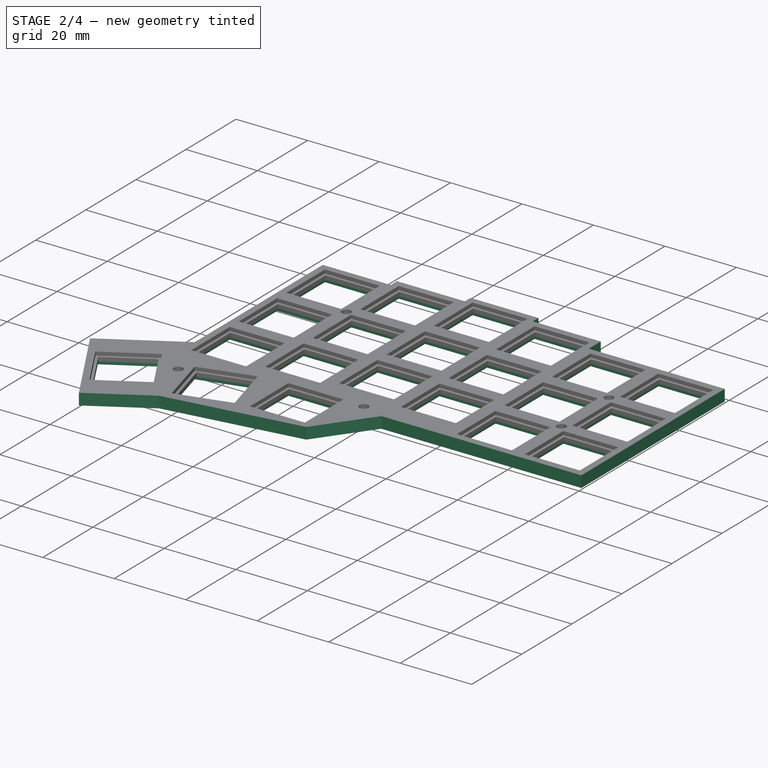
[diagram: stage 2 of 4 — iso view after this stage's code; geometry added in this stage tinted green]
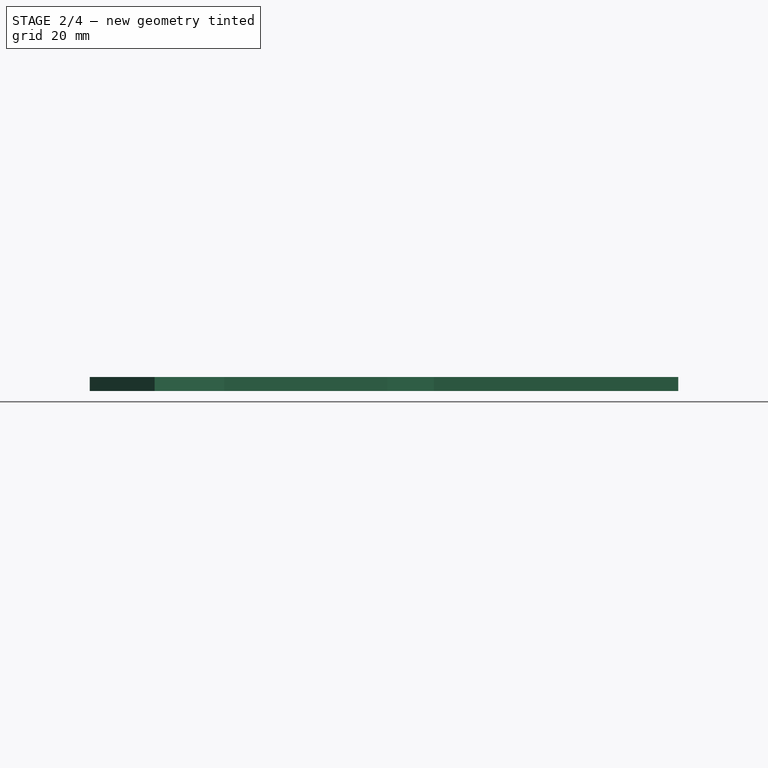
[diagram: stage 2 of 4 — front view after this stage's code; geometry added in this stage tinted green]
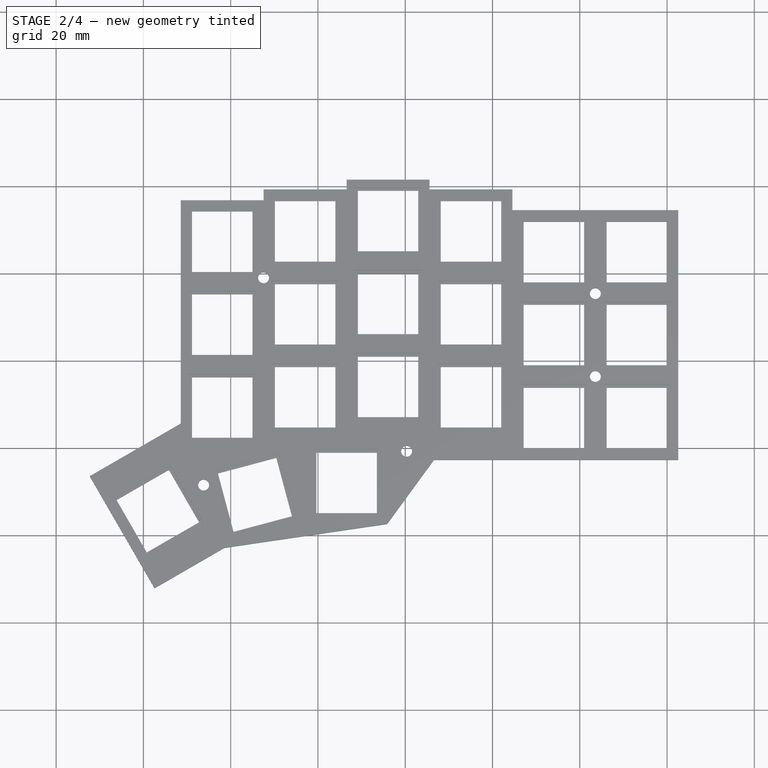
[diagram: stage 2 of 4 — top view after this stage's code; geometry added in this stage tinted green]
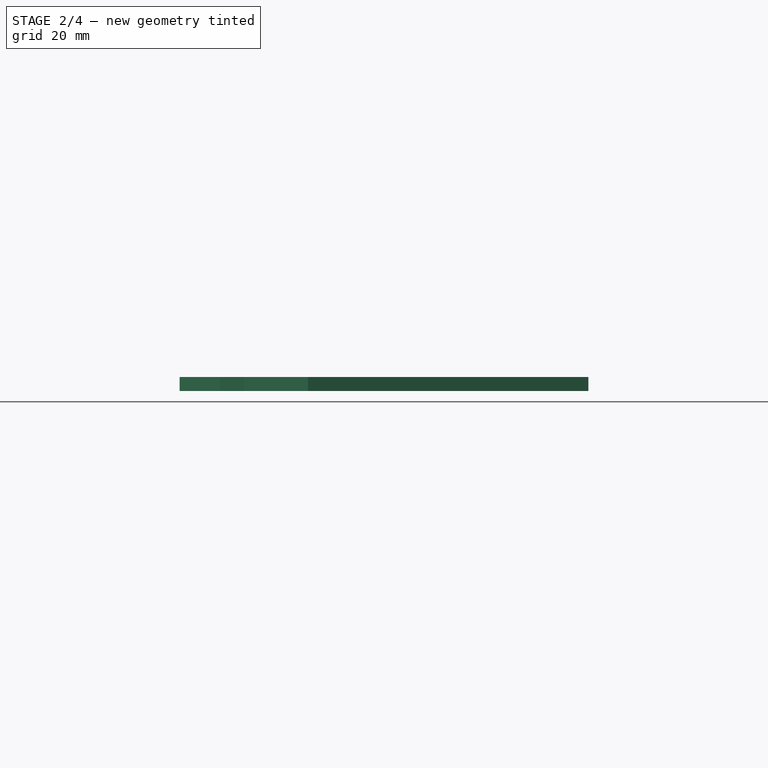
[diagram: stage 2 of 4 — right view after this stage's code; geometry added in this stage tinted green]
FEATURE [Sketcher::SketchObject] Sketch002
  ArcFitTolerance = 1e-06
  AttachmentSupport = -> [XY_Plane]
  ExternalGeometry = -> [Pad]
  FullyConstrained = true
  MapMode = 5
  Support = -> [XY_Plane]
  TreeRank = 15
  sketch-geometry (126):
    g0: LineSegment StartX=-109.608 StartY=54.9789 StartZ=0 EndX=-94.2573 EndY=54.9789 EndZ=0
    g1: LineSegment StartX=-94.2573 StartY=54.9789 StartZ=0 EndX=-94.2573 EndY=39.6279 EndZ=0
    g2: LineSegment StartX=-94.2573 StartY=39.6279 StartZ=0 EndX=-109.608 EndY=39.6279 EndZ=0
    g3: LineSegment StartX=-109.608 StartY=39.6279 StartZ=0 EndX=-109.608 EndY=54.9789 EndZ=0
    g4: LineSegment StartX=-90.607 StartY=57.3541 StartZ=0 EndX=-75.256 EndY=57.3541 EndZ=0
    g5: LineSegment StartX=-75.256 StartY=57.3541 StartZ=0 EndX=-75.256 EndY=42.0031 EndZ=0
    g6: LineSegment StartX=-75.256 StartY=42.0031 StartZ=0 EndX=-90.607 EndY=42.0031 EndZ=0
    g7: LineSegment StartX=-90.607 StartY=42.0031 StartZ=0 EndX=-90.607 EndY=57.3541 EndZ=0
    g8: LineSegment StartX=-109.608 StartY=35.9775 StartZ=0 EndX=-94.2573 EndY=35.9775 EndZ=0
    g9: LineSegment StartX=-94.2573 StartY=35.9775 StartZ=0 EndX=-94.2573 EndY=20.6265 EndZ=0
    g10: LineSegment StartX=-94.2573 StartY=20.6265 StartZ=0 EndX=-109.608 EndY=20.6265 EndZ=0
    g11: LineSegment StartX=-109.608 StartY=20.6265 StartZ=0 EndX=-109.608 EndY=35.9775 EndZ=0
    g12: LineSegment StartX=-109.608 StartY=16.9762 StartZ=0 EndX=-94.2573 EndY=16.9762 EndZ=0
    g13: LineSegment StartX=-94.2573 StartY=16.9762 StartZ=0 EndX=-94.2573 EndY=1.62517 EndZ=0
    g14: LineSegment StartX=-94.2573 StartY=1.62517 StartZ=0 EndX=-109.608 EndY=1.62517 EndZ=0
    g15: LineSegment StartX=-109.608 StartY=1.62517 StartZ=0 EndX=-109.608 EndY=16.9762 EndZ=0
    g16: LineSegment StartX=-90.607 StartY=19.3513 StartZ=0 EndX=-75.256 EndY=19.3513 EndZ=0
    g17: LineSegment StartX=-75.256 StartY=19.3513 StartZ=0 EndX=-75.256 EndY=4.00034 EndZ=0
    g18: LineSegment StartX=-75.256 StartY=4.00034 StartZ=0 EndX=-90.607 EndY=4.00034 EndZ=0
    g19: LineSegment StartX=-90.607 StartY=4.00034 StartZ=0 EndX=-90.607 EndY=19.3513 EndZ=0
    g20: LineSegment StartX=-90.607 StartY=38.3527 StartZ=0 EndX=-75.256 EndY=38.3527 EndZ=0
    g21: LineSegment StartX=-75.256 StartY=38.3527 StartZ=0 EndX=-75.256 EndY=23.0017 EndZ=0
    g22: LineSegment StartX=-75.256 StartY=23.0017 StartZ=0 EndX=-90.607 EndY=23.0017 EndZ=0
    g23: LineSegment StartX=-90.607 StartY=23.0017 StartZ=0 EndX=-90.607 EndY=38.3527 EndZ=0
    g24: LineSegment StartX=-71.6056 StartY=59.7292 StartZ=0 EndX=-56.2546 EndY=59.7292 EndZ=0
    g25: LineSegment StartX=-56.2546 StartY=59.7292 StartZ=0 EndX=-56.2546 EndY=44.3782 EndZ=0
    g26: LineSegment StartX=-56.2546 StartY=44.3782 StartZ=0 EndX=-71.6056 EndY=44.3782 EndZ=0
    g27: LineSegment StartX=-71.6056 StartY=44.3782 StartZ=0 EndX=-71.6056 EndY=59.7292 EndZ=0
    g28: LineSegment StartX=-71.6056 StartY=40.7279 StartZ=0 EndX=-56.2546 EndY=40.7279 EndZ=0
    g29: LineSegment StartX=-56.2546 StartY=40.7279 StartZ=0 EndX=-56.2546 EndY=25.3769 EndZ=0
    g30: LineSegment StartX=-56.2546 StartY=25.3769 StartZ=0 EndX=-71.6056 EndY=25.3769 EndZ=0
    g31: LineSegment StartX=-71.6056 StartY=25.3769 StartZ=0 EndX=-71.6056 EndY=40.7279 EndZ=0
    g32: LineSegment StartX=-71.6056 StartY=21.7265 StartZ=0 EndX=-56.2546 EndY=21.7265 EndZ=0
    g33: LineSegment StartX=-56.2546 StartY=21.7265 StartZ=0 EndX=-56.2546 EndY=6.37551 EndZ=0
    g34: LineSegment StartX=-56.2546 StartY=6.37551 StartZ=0 EndX=-71.6056 EndY=6.37551 EndZ=0
    g35: LineSegment StartX=-71.6056 StartY=6.37551 StartZ=0 EndX=-71.6056 EndY=21.7265 EndZ=0
    g36: LineSegment StartX=-52.6042 StartY=19.3513 StartZ=0 EndX=-37.2532 EndY=19.3513 EndZ=0
    g37: LineSegment StartX=-37.2532 StartY=19.3513 StartZ=0 EndX=-37.2532 EndY=4.00034 EndZ=0
    g38: LineSegment StartX=-37.2532 StartY=4.00034 StartZ=0 EndX=-52.6042 EndY=4.00034 EndZ=0
    g39: LineSegment StartX=-52.6042 StartY=4.00034 StartZ=0 EndX=-52.6042 EndY=19.3513 EndZ=0
    g40: LineSegment StartX=-52.6042 StartY=38.3527 StartZ=0 EndX=-37.2532 EndY=38.3527 EndZ=0
    g41: LineSegment StartX=-37.2532 StartY=38.3527 StartZ=0 EndX=-37.2532 EndY=23.0017 EndZ=0
    g42: LineSegment StartX=-37.2532 StartY=23.0017 StartZ=0 EndX=-52.6042 EndY=23.0017 EndZ=0
    g43: LineSegment StartX=-52.6042 StartY=23.0017 StartZ=0 EndX=-52.6042 EndY=38.3527 EndZ=0
    g44: LineSegment StartX=-52.6042 StartY=57.3541 StartZ=0 EndX=-37.2532 EndY=57.3541 EndZ=0
    g45: LineSegment StartX=-37.2532 StartY=57.3541 StartZ=0 EndX=-37.2532 EndY=42.0031 EndZ=0
    g46: LineSegment StartX=-37.2532 StartY=42.0031 StartZ=0 EndX=-52.6042 EndY=42.0031 EndZ=0
    g47: LineSegment StartX=-52.6042 StartY=42.0031 StartZ=0 EndX=-52.6042 EndY=57.3541 EndZ=0
    g48: LineSegment StartX=-33.6029 StartY=14.601 StartZ=0 EndX=-18.2519 EndY=14.601 EndZ=0
    g49: LineSegment StartX=-18.2519 StartY=14.601 StartZ=0 EndX=-18.2519 EndY=-0.75 EndZ=0
    g50: LineSegment StartX=-18.2519 StartY=-0.75 StartZ=0 EndX=-33.6029 EndY=-0.75 EndZ=0
    g51: LineSegment StartX=-33.6029 StartY=-0.75 StartZ=0 EndX=-33.6029 EndY=14.601 EndZ=0
    g52: LineSegment StartX=-33.6029 StartY=33.6024 StartZ=0 EndX=-18.2519 EndY=33.6024 EndZ=0
    g53: LineSegment StartX=-18.2519 StartY=33.6024 StartZ=0 EndX=-18.2519 EndY=18.2514 EndZ=0
    g54: LineSegment StartX=-18.2519 StartY=18.2514 StartZ=0 EndX=-33.6029 EndY=18.2514 EndZ=0
    g55: LineSegment StartX=-33.6029 StartY=18.2514 StartZ=0 EndX=-33.6029 EndY=33.6024 EndZ=0
    g56: LineSegment StartX=-33.6029 StartY=52.6037 StartZ=0 EndX=-18.2519 EndY=52.6037 EndZ=0
    g57: LineSegment StartX=-18.2519 StartY=52.6037 StartZ=0 EndX=-18.2519 EndY=37.2527 EndZ=0
    g58: LineSegment StartX=-18.2519 StartY=37.2527 StartZ=0 EndX=-33.6029 EndY=37.2527 EndZ=0
    g59: LineSegment StartX=-33.6029 StartY=37.2527 StartZ=0 EndX=-33.6029 EndY=52.6037 EndZ=0
    g60: LineSegment StartX=-14.601 StartY=52.6037 StartZ=0 EndX=0.75 EndY=52.6037 EndZ=0
    g61: LineSegment StartX=0.75 StartY=52.6037 StartZ=0 EndX=0.75 EndY=37.2527 EndZ=0
    g62: LineSegment StartX=0.75 StartY=37.2527 StartZ=0 EndX=-14.601 EndY=37.2527 EndZ=0
    g63: LineSegment StartX=-14.601 StartY=37.2527 StartZ=0 EndX=-14.601 EndY=52.6037 EndZ=0
    g64: LineSegment StartX=-14.601 StartY=33.6024 StartZ=0 EndX=0.75 EndY=33.6024 EndZ=0
    g65: LineSegment StartX=0.75 StartY=33.6024 StartZ=0 EndX=0.75 EndY=18.2514 EndZ=0
    g66: LineSegment StartX=0.75 StartY=18.2514 StartZ=0 EndX=-14.601 EndY=18.2514 EndZ=0
    g67: LineSegment StartX=-14.601 StartY=18.2514 StartZ=0 EndX=-14.601 EndY=33.6024 EndZ=0
    g68: LineSegment StartX=-14.601 StartY=14.601 StartZ=0 EndX=0.75 EndY=14.601 EndZ=0
    g69: LineSegment StartX=0.75 StartY=14.601 StartZ=0 EndX=0.75 EndY=-0.75 EndZ=0
    g70: LineSegment StartX=0.75 StartY=-0.75 StartZ=0 EndX=-14.601 EndY=-0.75 EndZ=0
    g71: LineSegment StartX=-14.601 StartY=-0.75 StartZ=0 EndX=-14.601 EndY=14.601 EndZ=0
    g72: LineSegment StartX=-81.1063 StartY=-0.27507 StartZ=0 EndX=-65.7553 EndY=-0.27507 EndZ=0
    g73: LineSegment StartX=-65.7553 StartY=-0.27507 StartZ=0 EndX=-65.7553 EndY=-15.6261 EndZ=0
    g74: LineSegment StartX=-65.7553 StartY=-15.6261 StartZ=0 EndX=-81.1063 EndY=-15.6261 EndZ=0
    g75: LineSegment StartX=-81.1063 StartY=-15.6261 StartZ=0 EndX=-81.1063 EndY=-0.27507 EndZ=0
    g76: LineSegment [constr] StartX=-109.608 StartY=54.9789 StartZ=0 EndX=-108.858 EndY=54.2289 EndZ=0
    g77: LineSegment [constr] StartX=-95.0073 StartY=40.3779 StartZ=0 EndX=-94.2573 EndY=39.6279 EndZ=0
    g78: LineSegment [constr] StartX=-90.607 StartY=57.3541 StartZ=0 EndX=-89.857 EndY=56.6041 EndZ=0
    g79: LineSegment [constr] StartX=-76.006 StartY=42.7531 StartZ=0 EndX=-75.256 EndY=42.0031 EndZ=0
    g80: LineSegment [constr] StartX=-71.6056 StartY=59.7292 StartZ=0 EndX=-70.8556 EndY=58.9792 EndZ=0
    g81: LineSegment [constr] StartX=-57.0046 StartY=45.1282 StartZ=0 EndX=-56.2546 EndY=44.3782 EndZ=0
    g82: LineSegment [constr] StartX=-109.608 StartY=35.9775 StartZ=0 EndX=-108.858 EndY=35.2275 EndZ=0
    g83: LineSegment [constr] StartX=-95.0073 StartY=21.3765 StartZ=0 EndX=-94.2573 EndY=20.6265 EndZ=0
    g84: LineSegment [constr] StartX=-109.608 StartY=16.9762 StartZ=0 EndX=-108.858 EndY=16.2262 EndZ=0
    g85: LineSegment [constr] StartX=-95.0073 StartY=2.37517 StartZ=0 EndX=-94.2573 EndY=1.62517 EndZ=0
    g86: LineSegment [constr] StartX=-90.607 StartY=19.3513 StartZ=0 EndX=-89.857 EndY=18.6013 EndZ=0
    g87: LineSegment [constr] StartX=-76.006 StartY=4.75034 StartZ=0 EndX=-75.256 EndY=4.00034 EndZ=0
    g88: LineSegment [constr] StartX=-90.607 StartY=38.3527 StartZ=0 EndX=-89.857 EndY=37.6027 EndZ=0
    g89: LineSegment [constr] StartX=-76.006 StartY=23.7517 StartZ=0 EndX=-75.256 EndY=23.0017 EndZ=0
    g90: LineSegment [constr] StartX=-71.6056 StartY=40.7279 StartZ=0 EndX=-70.8556 EndY=39.9779 EndZ=0
    g91: LineSegment [constr] StartX=-57.0046 StartY=26.1269 StartZ=0 EndX=-56.2546 EndY=25.3769 EndZ=0
    g92: LineSegment [constr] StartX=-71.6056 StartY=21.7265 StartZ=0 EndX=-70.8556 EndY=20.9765 EndZ=0
    g93: LineSegment [constr] StartX=-57.0046 StartY=7.12551 StartZ=0 EndX=-56.2546 EndY=6.37551 EndZ=0
    g94: LineSegment [constr] StartX=-81.1063 StartY=-0.27507 StartZ=0 EndX=-80.3563 EndY=-1.02507 EndZ=0
    g95: LineSegment [constr] StartX=-66.5053 StartY=-14.8761 StartZ=0 EndX=-65.7553 EndY=-15.6261 EndZ=0
    g96: LineSegment [constr] StartX=-52.6042 StartY=19.3513 StartZ=0 EndX=-51.8542 EndY=18.6013 EndZ=0
    g97: LineSegment [constr] StartX=-38.0032 StartY=4.75034 StartZ=0 EndX=-37.2532 EndY=4.00034 EndZ=0
    g98: LineSegment [constr] StartX=-52.6042 StartY=38.3527 StartZ=0 EndX=-51.8542 EndY=37.6027 EndZ=0
    g99: LineSegment [constr] StartX=-38.0032 StartY=23.7517 StartZ=0 EndX=-37.2532 EndY=23.0017 EndZ=0
    g100: LineSegment [constr] StartX=-52.6042 StartY=57.3541 StartZ=0 EndX=-51.8542 EndY=56.6041 EndZ=0
    g101: LineSegment [constr] StartX=-38.0032 StartY=42.7531 StartZ=0 EndX=-37.2532 EndY=42.0031 EndZ=0
    g102: LineSegment [constr] StartX=-33.6029 StartY=14.601 StartZ=0 EndX=-32.8529 EndY=13.851 EndZ=0
    g103: LineSegment [constr] StartX=-19.0019 StartY=0 StartZ=0 EndX=-18.2519 EndY=-0.75 EndZ=0
    g104: LineSegment [constr] StartX=-33.6029 StartY=33.6024 StartZ=0 EndX=-32.8529 EndY=32.8524 EndZ=0
    g105: LineSegment [constr] StartX=-19.0019 StartY=19.0014 StartZ=0 EndX=-18.2519 EndY=18.2514 EndZ=0
    g106: LineSegment [constr] StartX=-33.6029 StartY=52.6037 StartZ=0 EndX=-32.8529 EndY=51.8537 EndZ=0
    g107: LineSegment [constr] StartX=-19.0019 StartY=38.0027 StartZ=0 EndX=-18.2519 EndY=37.2527 EndZ=0
    g108: LineSegment [constr] StartX=-14.601 StartY=52.6037 StartZ=0 EndX=-13.851 EndY=51.8537 EndZ=0
    g109: LineSegment [constr] StartX=0 StartY=38.0027 StartZ=0 EndX=0.75 EndY=37.2527 EndZ=0
    g110: LineSegment [constr] StartX=-14.601 StartY=33.6024 StartZ=0 EndX=-13.851 EndY=32.8524 EndZ=0
    g111: LineSegment [constr] StartX=0 StartY=19.0014 StartZ=0 EndX=0.75 EndY=18.2514 EndZ=0
    g112: LineSegment [constr] StartX=-14.601 StartY=14.601 StartZ=0 EndX=-13.851 EndY=13.851 EndZ=0
    g113: LineSegment [constr] StartX=0 StartY=0 StartZ=0 EndX=0.75 EndY=-0.75 EndZ=0
    g114: LineSegment StartX=-103.835 StartY=-5.26466 StartZ=0 EndX=-89.0032 EndY=-1.30659 EndZ=0
    g115: LineSegment StartX=-89.0032 StartY=-1.30659 StartZ=0 EndX=-85.0451 EndY=-16.1385 EndZ=0
    g116: LineSegment StartX=-85.0451 StartY=-16.1385 StartZ=0 EndX=-99.8771 EndY=-20.0966 EndZ=0
    g117: LineSegment StartX=-99.8771 StartY=-20.0966 StartZ=0 EndX=-103.835 EndY=-5.26466 EndZ=0
    g118: LineSegment StartX=-127.171 StartY=-11.6283 StartZ=0 EndX=-113.872 EndY=-3.96192 EndZ=0
    g119: LineSegment StartX=-113.872 StartY=-3.96192 StartZ=0 EndX=-106.205 EndY=-17.2615 EndZ=0
    g120: LineSegment StartX=-106.205 StartY=-17.2615 StartZ=0 EndX=-119.505 EndY=-24.9279 EndZ=0
    g121: LineSegment StartX=-119.505 StartY=-24.9279 StartZ=0 EndX=-127.171 EndY=-11.6283 EndZ=0
    g122: LineSegment [constr] StartX=-127.171 StartY=-11.6283 StartZ=0 EndX=-126.147 EndY=-11.9036 EndZ=0
    g123: LineSegment [constr] StartX=-107.23 StartY=-16.9863 StartZ=0 EndX=-106.205 EndY=-17.2615 EndZ=0
    g124: LineSegment [constr] StartX=-103.835 StartY=-5.26466 StartZ=0 EndX=-102.917 EndY=-5.79592 EndZ=0
    g125: LineSegment [constr] StartX=-85.9631 StartY=-15.6073 StartZ=0 EndX=-85.0451 EndY=-16.1385 EndZ=0
  constraints (336):
    c: Coincident(g0,g1)
    c: Coincident(g1,g2)
    c: Coincident(g2,g3)
    c: Coincident(g3,g0)
    c: Horizontal(g0)
    c: Horizontal(g2)
    c: Vertical(g1)
    c: Vertical(g3)
    c: Coincident(g4,g5)
    c: Coincident(g5,g6)
    c: Coincident(g6,g7)
    c: Coincident(g7,g4)
    c: Horizontal(g4)
    c: Horizontal(g6)
    c: Vertical(g5)
    c: Vertical(g7)
    c: Coincident(g8,g9)
    c: Coincident(g9,g10)
    c: Coincident(g10,g11)
    c: Coincident(g11,g8)
    c: Horizontal(g8)
    c: Horizontal(g10)
    c: Vertical(g9)
    c: Vertical(g11)
    c: Coincident(g12,g13)
    c: Coincident(g13,g14)
    c: Coincident(g14,g15)
    c: Coincident(g15,g12)
    c: Horizontal(g12)
    c: Horizontal(g14)
    c: Vertical(g13)
    c: Vertical(g15)
    c: Coincident(g16,g17)
    c: Coincident(g17,g18)
    c: Coincident(g18,g19)
    c: Coincident(g19,g16)
    c: Horizontal(g16)
    c: Horizontal(g18)
    c: Vertical(g17)
    c: Vertical(g19)
    c: Coincident(g20,g21)
    c: Coincident(g21,g22)
    c: Coincident(g22,g23)
    c: Coincident(g23,g20)
    c: Horizontal(g20)
    c: Horizontal(g22)
    c: Vertical(g21)
    c: Vertical(g23)
    c: Coincident(g24,g25)
    c: Coincident(g25,g26)
    c: Coincident(g26,g27)
    c: Coincident(g27,g24)
    c: Horizontal(g24)
    c: Horizontal(g26)
    c: Vertical(g25)
    c: Vertical(g27)
    c: Coincident(g28,g29)
    c: Coincident(g29,g30)
    c: Coincident(g30,g31)
    c: Coincident(g31,g28)
    c: Horizontal(g28)
    c: Horizontal(g30)
    c: Vertical(g29)
    c: Vertical(g31)
    c: Coincident(g32,g33)
    c: Coincident(g33,g34)
    c: Coincident(g34,g35)
    c: Coincident(g35,g32)
    c: Horizontal(g32)
    c: Horizontal(g34)
    c: Vertical(g33)
    c: Vertical(g35)
    c: Coincident(g36,g37)
    c: Coincident(g37,g38)
    c: Coincident(g38,g39)
    c: Coincident(g39,g36)
    c: Horizontal(g36)
    c: Horizontal(g38)
    c: Vertical(g37)
    c: Vertical(g39)
    c: Coincident(g40,g41)
    c: Coincident(g41,g42)
    c: Coincident(g42,g43)
    c: Coincident(g43,g40)
    c: Horizontal(g40)
    c: Horizontal(g42)
    c: Vertical(g41)
    c: Vertical(g43)
    c: Coincident(g44,g45)
    c: Coincident(g45,g46)
    c: Coincident(g46,g47)
    c: Coincident(g47,g44)
    c: Horizontal(g44)
    c: Horizontal(g46)
    c: Vertical(g45)
    c: Vertical(g47)
    c: Coincident(g48,g49)
    c: Coincident(g49,g50)
    c: Coincident(g50,g51)
    c: Coincident(g51,g48)
    c: Horizontal(g48)
    c: Horizontal(g50)
    c: Vertical(g49)
    c: Vertical(g51)
    c: Coincident(g52,g53)
    c: Coincident(g53,g54)
    c: Coincident(g54,g55)
    c: Coincident(g55,g52)
    c: Horizontal(g52)
    c: Horizontal(g54)
    c: Vertical(g53)
    c: Vertical(g55)
    c: Coincident(g56,g57)
    c: Coincident(g57,g58)
    c: Coincident(g58,g59)
    c: Coincident(g59,g56)
    c: Horizontal(g56)
    c: Horizontal(g58)
    c: Vertical(g57)
    c: Vertical(g59)
    c: Coincident(g60,g61)
    c: Coincident(g61,g62)
    c: Coincident(g62,g63)
    c: Coincident(g63,g60)
    c: Horizontal(g60)
    c: Horizontal(g62)
    c: Vertical(g61)
    c: Vertical(g63)
    c: Coincident(g64,g65)
    c: Coincident(g65,g66)
    c: Coincident(g66,g67)
    c: Coincident(g67,g64)
    c: Horizontal(g64)
    c: Horizontal(g66)
    c: Vertical(g65)
    c: Vertical(g67)
    c: Coincident(g68,g69)
    c: Coincident(g69,g70)
    c: Coincident(g70,g71)
    c: Coincident(g71,g68)
    c: Horizontal(g68)
    c: Horizontal(g70)
    c: Vertical(g69)
    c: Vertical(g71)
    c: Coincident(g72,g73)
    c: Coincident(g73,g74)
    c: Coincident(g74,g75)
    c: Coincident(g75,g72)
    c: Horizontal(g72)
    c: Horizontal(g74)
    c: Vertical(g73)
    c: Vertical(g75)
    c: Coincident(g76,g0)
    c: Coincident(g76,g-5)
    c: Coincident(g77,g-6)
    c: Coincident(g77,g1)
    c: Coincident(g78,g4)
    c: Coincident(g78,g-38)
    c: Coincident(g79,g-37)
    c: Coincident(g79,g5)
    c: Coincident(g80,g24)
    c: Coincident(g80,g-40)
    c: Coincident(g81,g-42)
    c: Coincident(g81,g25)
    c: Coincident(g82,g8)
    c: Coincident(g82,g-10)
    c: Coincident(g83,g-9)
    c: Coincident(g83,g9)
    c: Coincident(g84,g12)
    c: Coincident(g84,g-13)
    c: Coincident(g85,g-14)
    c: Coincident(g85,g13)
    c: Coincident(g86,g16)
    c: Coincident(g86,g-30)
    c: Coincident(g87,g-29)
    c: Coincident(g87,g17)
    c: Coincident(g88,g20)
    c: Coincident(g88,g-32)
    c: Coincident(g89,g-34)
    c: Coincident(g89,g21)
    c: Coincident(g90,g28)
    c: Coincident(g90,g-46)
    c: Coincident(g91,g-45)
    c: Coincident(g91,g29)
    c: Coincident(g92,g32)
    c: Coincident(g92,g-48)
    c: Coincident(g93,g-50)
    c: Coincident(g93,g33)
    c: Coincident(g94,g72)
    c: Coincident(g94,g-24)
    c: Coincident(g95,g-26)
    c: Coincident(g95,g73)
    c: Coincident(g96,g36)
    c: Coincident(g96,g-52)
    c: Coincident(g97,g-54)
    c: Coincident(g97,g37)
    c: Coincident(g98,g40)
    c: Coincident(g98,g-56)
    c: Coincident(g99,g-58)
    c: Coincident(g99,g41)
    c: Coincident(g100,g44)
    c: Coincident(g100,g-60)
    c: Coincident(g101,g-62)
    c: Coincident(g101,g45)
    c: Coincident(g102,g48)
    c: Coincident(g102,g-76)
    c: Coincident(g103,g-78)
    c: Coincident(g103,g49)
    c: Coincident(g104,g52)
    c: Coincident(g104,g-72)
    c: Coincident(g105,g-74)
    c: Coincident(g105,g53)
    c: Coincident(g106,g56)
    c: Coincident(g106,g-64)
    c: Coincident(g107,g-66)
    c: Coincident(g107,g57)
    c: Coincident(g108,g60)
    c: Coincident(g108,g-68)
    c: Coincident(g109,g-70)
    c: Coincident(g109,g61)
    c: Coincident(g110,g64)
    c: Coincident(g110,g-84)
    c: Coincident(g111,g-86)
    c: Coincident(g111,g65)
    c: Coincident(g112,g68)
    c: Coincident(g112,g-80)
    c: Coincident(g113,g-82)
    c: Coincident(g113,g69)
    c: Coincident(g115,g114)
    c: Coincident(g116,g115)
    c: Coincident(g117,g116)
    c: Coincident(g117,g114)
    c: Parallel(g117,g-21)
    c: Parallel(g-21,g115)
    c: Parallel(g114,g-19)
    c: Parallel(g-19,g116)
    c: Coincident(g119,g118)
    c: Coincident(g120,g119)
    c: Coincident(g121,g120)
    c: Coincident(g121,g118)
    c: Parallel(g118,g120)
    c: Parallel(g120,g-16)
    c: Parallel(g121,g-15)
    c: Parallel(g-15,g119)
    c: Coincident(g122,g118)
    c: Coincident(g122,g-17)
    c: Coincident(g123,g-18)
    c: Coincident(g123,g119)
    c: Coincident(g124,g114)
    c: Coincident(g124,g-21)
    c: Coincident(g125,g-22)
    c: Coincident(g125,g115)
    c: Parallel(g124,g125)
    c: Parallel(g122,g123)
    c: Angle(g115,g125) = 0.785398
    c: Angle(g119,g123) = 0.785398
    c: Parallel(g112,g113)
    c: Parallel(g113,g111)
    c: Parallel(g111,g110)
    c: Parallel(g110,g109)
    c: Parallel(g109,g108)
    c: Parallel(g108,g107)
    c: Parallel(g107,g106)
    c: Parallel(g106,g104)
    c: Parallel(g104,g105)
    c: Parallel(g105,g102)
    c: Parallel(g102,g103)
    c: Parallel(g103,g97)
    c: Parallel(g97,g96)
    c: Parallel(g96,g98)
    c: Parallel(g98,g99)
    c: Parallel(g99,g101)
    c: Parallel(g101,g100)
    c: Parallel(g100,g81)
    c: Parallel(g81,g80)
    c: Parallel(g80,g90)
    c: Parallel(g90,g91)
    c: Parallel(g91,g92)
    c: Parallel(g92,g93)
    c: Parallel(g93,g87)
    c: Parallel(g87,g86)
    c: Parallel(g86,g89)
    c: Parallel(g89,g88)
    c: Parallel(g88,g79)
    c: Parallel(g79,g78)
    c: Parallel(g78,g76)
    c: Parallel(g76,g77)
    c: Parallel(g77,g82)
    c: Parallel(g82,g83)
    c: Parallel(g83,g84)
    c: Parallel(g84,g85)
    c: Parallel(g85,g94)
    c: Parallel(g94,g95)
    c: Angle(g69,g113) = 0.785398
    c: DistanceY(g69,g69) = 15.351
    c: Equal(g113,g112)
    c: Equal(g112,g111)
    c: Equal(g111,g110)
    c: Equal(g110,g109)
    c: Equal(g109,g108)
    c: Equal(g108,g106)
    c: Equal(g106,g107)
    c: Equal(g107,g104)
    c: Equal(g104,g105)
    c: Equal(g105,g102)
    c: Equal(g102,g103)
    c: Equal(g103,g96)
    c: Equal(g96,g97)
    c: Equal(g97,g98)
    c: Equal(g98,g99)
    c: Equal(g99,g101)
    c: Equal(g101,g100)
    c: Equal(g100,g80)
    c: Equal(g80,g81)
    c: Equal(g81,g90)
    c: Equal(g90,g91)
    c: Equal(g91,g92)
    c: Equal(g92,g93)
    c: Equal(g93,g94)
    c: Equal(g94,g95)
    c: Equal(g95,g86)
    c: Equal(g86,g87)
    c: Equal(g87,g88)
    c: Equal(g88,g89)
    c: Equal(g89,g78)
    c: Equal(g78,g79)
    c: Equal(g79,g76)
    c: Equal(g76,g77)
    c: Equal(g77,g82)
    c: Equal(g82,g83)
    c: Equal(g83,g84)
    c: Equal(g84,g85)
    c: Equal(g85,g124)
    c: Equal(g124,g125)
    c: Equal(g125,g122)
    c: Equal(g122,g123)
FEATURE [PartDesign::Pocket] Pocket001
  BaseFeature = -> Pocket
  ClaimChildren = false
  Fit = 0
  FitJoin = 0
  InnerFit = 0
  InnerFitJoin = 0
  InnerTaperAngle = 0
  InnerTaperAngleRev = 0
  Length = 1.1
  Length2 = 100
  Linearize = true
  NewSolid = false
  Profile = -> Sketch002
  Reversed = true
  Suppress = false
  TreeRank = 16
  Type = 0
  _ProfileBasedVersion = 1
FEATURE [Sketcher::SketchObject] Sketch003
  ArcFitTolerance = 1e-06
  AttachmentSupport = -> [Pocket001]
  ExternalGeometry = -> [Pocket001]
  FullyConstrained = true
  MapMode = 5
  Placement = pos=(0,0,3.2) rot=(0,0,1;0rad)
  Support = -> [Pocket001]
  TreeRank = 17
  sketch-geometry (17):
    g0: LineSegment StartX=-110.938 StartY=56.2942 StartZ=0 EndX=-91.9371 EndY=56.2942 EndZ=0
    g1: LineSegment StartX=-91.9371 StartY=56.2942 StartZ=0 EndX=-91.9371 EndY=58.7944 EndZ=0
    g2: LineSegment StartX=-91.9371 StartY=58.7944 StartZ=0 EndX=-72.9358 EndY=58.7944 EndZ=0
    g3: LineSegment StartX=-72.9358 StartY=58.7944 StartZ=0 EndX=-72.9358 EndY=61.0446 EndZ=0
    g4: LineSegment StartX=-72.9358 StartY=61.0446 StartZ=0 EndX=-54.9345 EndY=61.0446 EndZ=0
    g5: LineSegment StartX=-54.9345 StartY=61.0446 StartZ=0 EndX=-54.9345 EndY=58.7944 EndZ=0
    g6: LineSegment StartX=-54.9345 StartY=58.7944 StartZ=0 EndX=-35.9331 EndY=58.7944 EndZ=0
    g7: LineSegment StartX=-35.9331 StartY=58.7944 StartZ=0 EndX=-35.9331 EndY=54.0441 EndZ=0
    g8: LineSegment StartX=-35.9331 StartY=54.0441 StartZ=0 EndX=2.06959 EndY=54.0441 EndZ=0
    g9: LineSegment StartX=2.06959 StartY=54.0441 StartZ=0 EndX=2.06959 EndY=-2.20994 EndZ=0
    g10: LineSegment StartX=2.06959 StartY=-2.20994 StartZ=0 EndX=-53.681 EndY=-2.20994 EndZ=0
    g11: LineSegment StartX=-53.681 StartY=-2.20994 StartZ=0 EndX=-64.415 EndY=-16.9207 EndZ=0
    g12: LineSegment StartX=-64.415 StartY=-16.9207 StartZ=0 EndX=-101.632 EndY=-22.3827 EndZ=0
    g13: LineSegment StartX=-101.632 StartY=-22.3827 StartZ=0 EndX=-117.258 EndY=-31.4235 EndZ=0
    g14: LineSegment StartX=-117.258 StartY=-31.4235 StartZ=0 EndX=-131.614 EndY=-6.61191 EndZ=0
    g15: LineSegment StartX=-131.614 StartY=-6.61191 StartZ=0 EndX=-110.938 EndY=5.35092 EndZ=0
    g16: LineSegment StartX=-110.938 StartY=5.35092 StartZ=0 EndX=-110.938 EndY=56.2942 EndZ=0
  constraints (34):
    c: Coincident(g1,g0)
    c: Coincident(g2,g1)
    c: Coincident(g3,g2)
    c: Coincident(g4,g3)
    c: Coincident(g5,g4)
    c: Coincident(g6,g5)
    c: Coincident(g7,g6)
    c: Coincident(g8,g7)
    c: Coincident(g9,g8)
    c: Coincident(g10,g9)
    c: Coincident(g11,g10)
    c: Coincident(g12,g11)
    c: Coincident(g13,g12)
    c: Coincident(g14,g13)
    c: Coincident(g15,g14)
    c: Coincident(g16,g15)
    c: Coincident(g0,g-19)
    c: Coincident(g1,g-18)
    c: Coincident(g2,g-17)
    c: Coincident(g3,g-16)
    c: Coincident(g-15,g4)
    c: Coincident(g-14,g5)
    c: Coincident(g-13,g6)
    c: Coincident(g7,g-12)
    c: Coincident(g-11,g8)
    c: Coincident(g9,g-10)
    c: Coincident(g-9,g10)
    c: Coincident(g-8,g11)
    c: Coincident(g12,g-7)
    c: Coincident(g13,g-6)
    c: Coincident(g14,g-5)
    c: Coincident(g15,g-4)
    c: Coincident(g0,g-19)
    c: Coincident(g16,g0)
FEATURE [Part::Offset2D] Offset2D
  Fill = true
  Intersection = false
  Join = 2
  Mode = 1
  SelfIntersection = false
  Source = -> Sketch003
  TreeRank = 18
  Value = 0.5
FEATURE [PartDesign::FeatureWrap] Wrap  label="Offset2D001"
  Frozen = false
  NewSolid = false
  Suppress = false
  TreeRank = 19
  Type = 2
  WrapFeature = -> Offset2D
FEATURE [PartDesign::Pad] Pad001
  BaseFeature = -> Pocket001
  ClaimChildren = false
  Direction = (1,1,1)
  Fit = 0
  FitJoin = 0
  InnerFit = 0
  InnerFitJoin = 0
  InnerTaperAngle = 0
  InnerTaperAngleRev = 0
  Length = 10
  Length2 = 100
  Linearize = true
  NewSolid = false
  Profile = -> Wrap
  Suppress = false
  TreeRank = 20
  Type = 3
  UpToFace = -> Pocket001 [Face4]
  _ProfileBasedVersion = 1
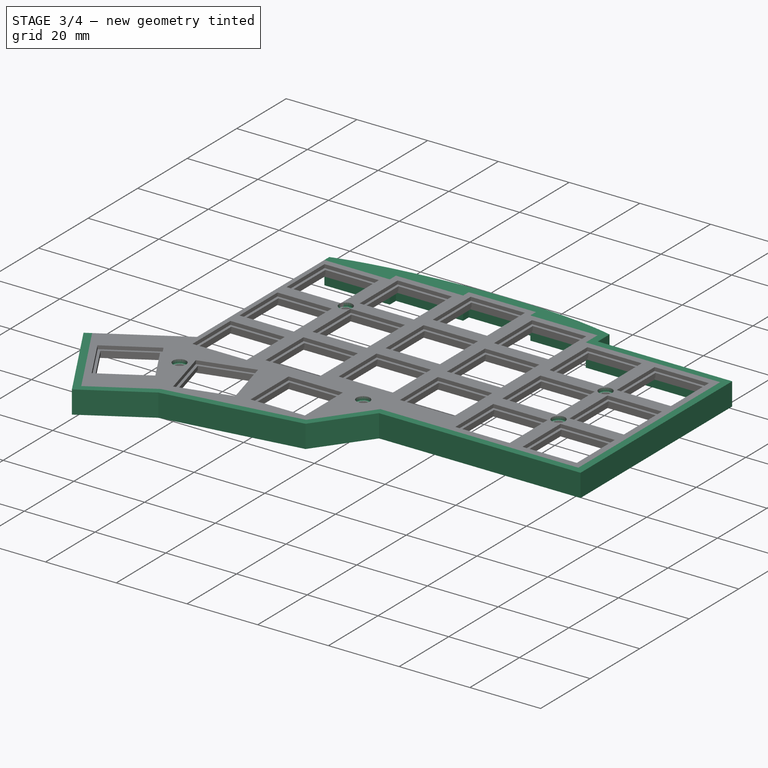
[diagram: stage 3 of 4 — iso view after this stage's code; geometry added in this stage tinted green]
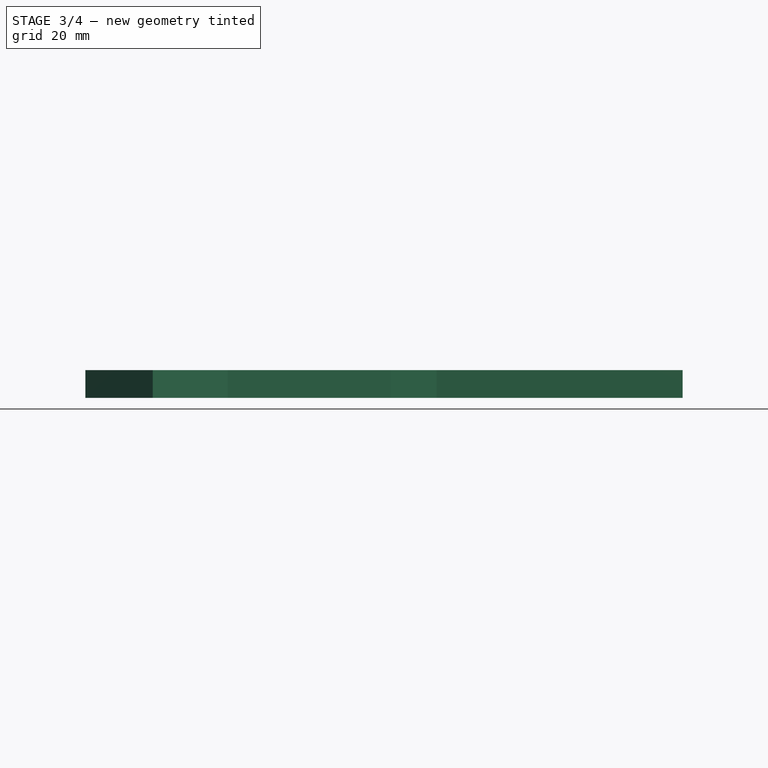
[diagram: stage 3 of 4 — front view after this stage's code; geometry added in this stage tinted green]
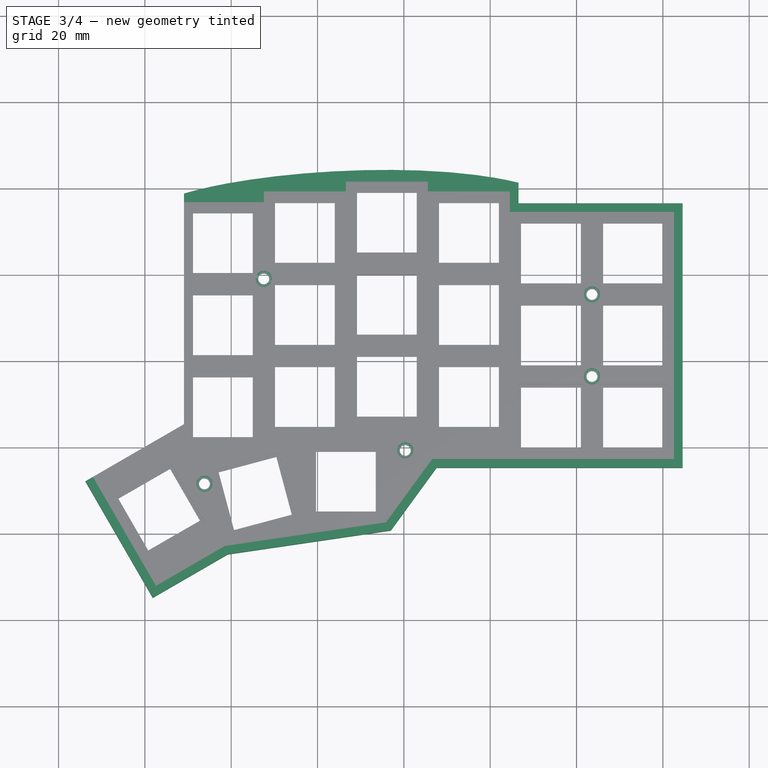
[diagram: stage 3 of 4 — top view after this stage's code; geometry added in this stage tinted green]
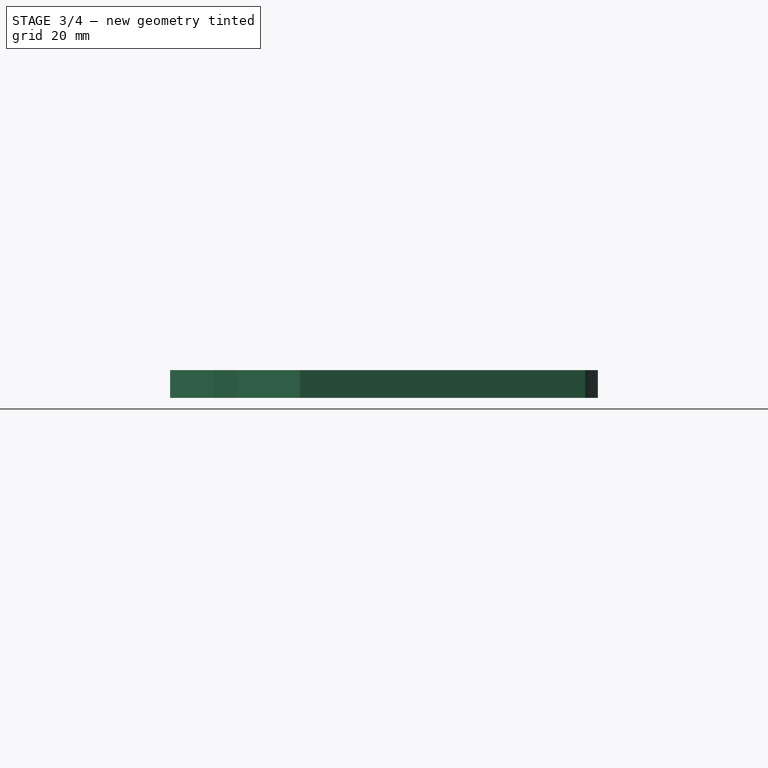
[diagram: stage 3 of 4 — right view after this stage's code; geometry added in this stage tinted green]
FEATURE [Sketcher::SketchObject] Sketch004
  ArcFitTolerance = 1e-06
  AttachmentSupport = -> [Pad001]
  ExternalGeometry = -> [Wrap,Sketch003]
  FullyConstrained = false
  MapMode = 5
  Placement = pos=(0,0,3.2) rot=(0,0,1;0rad)
  Support = -> [Pad001]
  TreeRank = 21
  sketch-geometry (32):
    g0: LineSegment StartX=-133.778 StartY=-7.86391 StartZ=0 EndX=-118.17 EndY=-34.8394 EndZ=0
    g1: LineSegment StartX=-118.17 StartY=-34.8394 StartZ=0 EndX=-100.795 EndY=-24.7866 EndZ=0
    g2: LineSegment StartX=-100.795 StartY=-24.7866 StartZ=0 EndX=-63.0139 EndY=-19.2419 EndZ=0
    g3: LineSegment StartX=-63.0139 StartY=-19.2419 StartZ=0 EndX=-52.4104 EndY=-4.70994 EndZ=0
    g4: LineSegment StartX=-52.4104 StartY=-4.70994 StartZ=0 EndX=4.56959 EndY=-4.70994 EndZ=0
    g5: LineSegment StartX=4.56959 StartY=-4.70994 StartZ=0 EndX=4.56959 EndY=56.5441 EndZ=0
    g6: LineSegment StartX=4.56959 StartY=56.5441 StartZ=0 EndX=-33.4331 EndY=56.5441 EndZ=0
    g7-g10: Circle [constr] x4 (B-spline internal-alignment scaffolding for g11; pole/knot coordinates omitted)
    g11: BSplineCurve PolesCount=4 KnotsCount=2 Degree=3 IsPeriodic=0
    g12: GeomPoint [constr] X=-110.938 Y=58.7942 Z=0
    g13: GeomPoint [constr] X=-33.4331 Y=61.2944 Z=0
    g14: LineSegment [constr] StartX=-117.44 StartY=-32.1067 StartZ=0 EndX=-116.439 EndY=-33.8378 EndZ=0
    g15: LineSegment [constr] StartX=-117.44 StartY=-32.1067 StartZ=0 EndX=-119.172 EndY=-33.1083 EndZ=0
    g16: LineSegment [constr] StartX=-100.795 StartY=-24.7866 StartZ=0 EndX=-101.086 EndY=-22.8078 EndZ=0
    g17: LineSegment [constr] StartX=-63.0139 StartY=-19.2419 StartZ=0 EndX=-64.6295 EndY=-18.063 EndZ=0
    g18: LineSegment [constr] StartX=-52.4104 StartY=-4.70994 StartZ=0 EndX=-52.4104 EndY=-2.70994 EndZ=0
    g19: LineSegment [constr] StartX=2.56959 StartY=-2.70994 StartZ=0 EndX=4.56959 EndY=-2.70994 EndZ=0
    g20: LineSegment [constr] StartX=2.56959 StartY=54.5441 StartZ=0 EndX=2.56959 EndY=56.5441 EndZ=0
    g21: LineSegment StartX=-33.4331 StartY=61.2944 StartZ=0 EndX=-33.4331 EndY=56.5441 EndZ=0
    g22: LineSegment StartX=-110.938 StartY=56.7942 StartZ=0 EndX=-110.938 EndY=58.7942 EndZ=0
    g23: LineSegment [constr] StartX=-54.4345 StartY=61.5446 StartZ=0 EndX=-54.4345 EndY=66.5446 EndZ=0
    g24: LineSegment [constr] StartX=-35.4331 StartY=59.2944 StartZ=0 EndX=-33.4331 EndY=59.2944 EndZ=0
    g25: LineSegment [constr] StartX=-33.4331 StartY=59.2944 StartZ=0 EndX=-33.4331 EndY=61.2944 EndZ=0
    g26: LineSegment [constr] StartX=-92.4371 StartY=59.2944 StartZ=0 EndX=-92.4371 EndY=64.2944 EndZ=0
    g27: LineSegment [constr] StartX=-110.938 StartY=56.2942 StartZ=0 EndX=-110.938 EndY=56.7942 EndZ=0
    g28: LineSegment [constr] StartX=-131.614 StartY=-6.61191 StartZ=0 EndX=-132.046 EndY=-6.86231 EndZ=0
    g29: LineSegment StartX=-133.778 StartY=-7.86391 StartZ=0 EndX=-132.046 EndY=-6.86231 EndZ=0
    g30: LineSegment StartX=-132.046 StartY=-6.86231 StartZ=0 EndX=-117.44 EndY=-32.1067 EndZ=0
    g31: LineSegment StartX=-92.4371 StartY=56.7942 StartZ=0 EndX=-110.938 EndY=56.7942 EndZ=0
  constraints (81):
    c: Coincident(g1,g0)
    c: Coincident(g2,g1)
    c: Coincident(g3,g2)
    c: Coincident(g4,g3)
    c: Horizontal(g4)
    c: Coincident(g5,g4)
    c: Vertical(g5)
    c: Coincident(g6,g5)
    c: Horizontal(g6)
    c: Weight(g7) = 1
    c: Equal(g7,g8)
    c: Equal(g7,g9)
    c: InternalAlignment(g7-g10 -> g11) x4
    c: InternalAlignment(g12,g11)
    c: InternalAlignment(g13,g11)
    c: Parallel(g0,g-17)
    c: Parallel(g1,g-16)
    c: Parallel(g2,g-15)
    c: Parallel(g3,g-14)
    c: Coincident(g14,g-17)
    c: PointOnObject(g14,g1)
    c: Coincident(g15,g-17)
    c: PointOnObject(g15,g0)
    c: Parallel(g14,g-17)
    c: Parallel(g-16,g15)
    c: Coincident(g16,g1)
    c: PointOnObject(g16,g-15)
    c: Perpendicular(g-15,g16)
    c: Coincident(g17,g2)
    c: PointOnObject(g17,g-14)
    c: Perpendicular(g-14,g17)
    c: Coincident(g18,g3)
    c: PointOnObject(g18,g-13)
    c: Vertical(g18)
    c: Coincident(g19,g-13)
    c: PointOnObject(g19,g5)
    c: Horizontal(g19)
    c: Coincident(g20,g-12)
    c: PointOnObject(g20,g6)
    c: Vertical(g20)
    c: Vertical(g21)
    c: Equal(g20,g19)
    c: Equal(g19,g18)
    c: Equal(g18,g17)
    c: Equal(g17,g16)
    c: Equal(g16,g14)
    c: Equal(g14,g15)
    c: DistanceX(g19,g19) = 2
    c: Coincident(g6,g21)
    c: Coincident(g22,g11)
    c: Vertical(g22)
    c: Coincident(g23,g-8)
    c: Coincident(g23,g9)
    c: Vertical(g23)
    c: DistanceY(g23,g23) = 5
    c: Coincident(g21,g11)
    c: Coincident(g24,g-10)
    c: PointOnObject(g24,g21)
    c: Horizontal(g24)
    c: Coincident(g25,g24)
    c: Coincident(g25,g11)
    c: Equal(g24,g25)
    c: Coincident(g26,g-5)
    c: Coincident(g26,g8)
    c: Vertical(g26)
    c: DistanceY(g26,g26) = 5
    c: Coincident(g27,g-18)
    c: PointOnObject(g27,g-3)
    c: Vertical(g27)
    c: Coincident(g22,g27)
    c: Equal(g22,g15)
    c: Coincident(g28,g-20)
    c: PointOnObject(g28,g-17)
    c: Perpendicular(g28,g-17)
    c: Coincident(g29,g0)
    c: Coincident(g29,g28)
    c: Perpendicular(g0,g29)
    c: Coincident(g30,g29)
    c: Coincident(g30,g-17)
    c: Coincident(g31,g-4)
    c: Coincident(g31,g22)
FEATURE [Sketcher::SketchObject] Sketch005
  ArcFitTolerance = 1e-06
  AttachmentSupport = -> [Wrap]
  ExternalGeometry = -> [Sketch003,Wrap,Pad001]
  FullyConstrained = true
  MapMode = 5
  Placement = pos=(0,0,3.2) rot=(1,0,0;3.14159rad)
  Support = -> [Wrap]
  TreeRank = 22
  sketch-geometry (6):
    g0: LineSegment StartX=-132.297 StartY=6.42953 StartZ=0 EndX=-132.046 EndY=6.86231 EndZ=0
    g1: LineSegment StartX=-132.046 StartY=6.86231 StartZ=0 EndX=-131.614 EndY=6.61191 EndZ=0
    g2: LineSegment StartX=-132.297 StartY=6.42953 StartZ=0 EndX=-111.438 EndY=-5.63929 EndZ=0
    g3: LineSegment StartX=-110.938 StartY=-56.2942 StartZ=0 EndX=-110.938 EndY=-56.7942 EndZ=0
    g4: LineSegment StartX=-110.938 StartY=-56.7942 StartZ=0 EndX=-111.438 EndY=-56.7942 EndZ=0
    g5: LineSegment StartX=-111.438 StartY=-56.7942 StartZ=0 EndX=-111.438 EndY=-5.63929 EndZ=0
  constraints (13):
    c: Coincident(g0,g-5)
    c: Coincident(g1,g0)
    c: Tangent(g1,g-3) = -1.5708
    c: Perpendicular(g0,g1)
    c: Coincident(g2,g0)
    c: Coincident(g2,g-6)
    c: Coincident(g3,g-4)
    c: Vertical(g3)
    c: Coincident(g4,g3)
    c: Horizontal(g4)
    c: Coincident(g5,g4)
    c: Coincident(g5,g2)
    c: Coincident(g4,g-7)
FEATURE [PartDesign::Pocket] Pocket002
  BaseFeature = -> Pad001
  ClaimChildren = false
  Fit = 0
  FitJoin = 0
  InnerFit = 0
  InnerFitJoin = 0
  InnerTaperAngle = 0
  InnerTaperAngleRev = 0
  Length = 5
  Length2 = 100
  Linearize = true
  NewSolid = false
  Profile = -> Sketch005
  Reversed = true
  Suppress = false
  TreeRank = 23
  Type = 1
  _ProfileBasedVersion = 1
FEATURE [PartDesign::Pad] Pad002
  BaseFeature = -> Pocket002
  ClaimChildren = false
  Direction = (1,1,1)
  Fit = 0
  FitJoin = 0
  InnerFit = 0
  InnerFitJoin = 0
  InnerTaperAngle = 0
  InnerTaperAngleRev = 0
  Length = 6.45
  Length2 = 100
  Linearize = true
  NewSolid = false
  Profile = -> Sketch004
  Reversed = true
  Suppress = false
  TreeRank = 24
  Type = 0
  _ProfileBasedVersion = 1
FEATURE [Sketcher::SketchObject] Sketch006
  ArcFitTolerance = 1e-06
  AttachmentSupport = -> [Pad002]
  ExternalGeometry = -> [Pad002]
  FullyConstrained = true
  MapMode = 5
  Placement = pos=(0,0,3.2) rot=(0,0,1;0rad)
  Support = -> [Pad002]
  TreeRank = 25
  sketch-geometry (5):
    g0: Circle CenterX=-106.201 CenterY=-8.45994 CenterZ=0 NormalX=0 NormalY=0 NormalZ=1 AngleXU=0 Radius=1.875
    g1: Circle CenterX=-92.4562 CenterY=39.0423 CenterZ=0 NormalX=0 NormalY=0 NormalZ=1 AngleXU=0 Radius=1.875
    g2: Circle CenterX=-16.4264 CenterY=35.4275 CenterZ=0 NormalX=0 NormalY=0 NormalZ=1 AngleXU=0 Radius=1.875
    g3: Circle CenterX=-16.4264 CenterY=16.4262 CenterZ=0 NormalX=0 NormalY=0 NormalZ=1 AngleXU=0 Radius=1.875
    g4: Circle CenterX=-59.681 CenterY=-0.70994 CenterZ=0 NormalX=0 NormalY=0 NormalZ=1 AngleXU=0 Radius=1.875
  constraints (10):
    c: Coincident(g0,g-4)
    c: Coincident(g1,g-3)
    c: Coincident(g2,g-6)
    c: Coincident(g3,g-7)
    c: Coincident(g4,g-5)
    c: Equal(g4,g0)
    c: Equal(g0,g1)
    c: Equal(g1,g2)
    c: Equal(g2,g3)
    c: Diameter(g0) = 3.75
FEATURE [PartDesign::Pocket] Pocket003
  BaseFeature = -> Pad002
  ClaimChildren = false
  Fit = 0
  FitJoin = 0
  InnerFit = 0
  InnerFitJoin = 0
  InnerTaperAngle = 0
  InnerTaperAngleRev = 0
  Length = 1
  Length2 = 100
  Linearize = true
  NewSolid = false
  Profile = -> Sketch006
  Suppress = false
  TreeRank = 26
  Type = 0
  _ProfileBasedVersion = 1
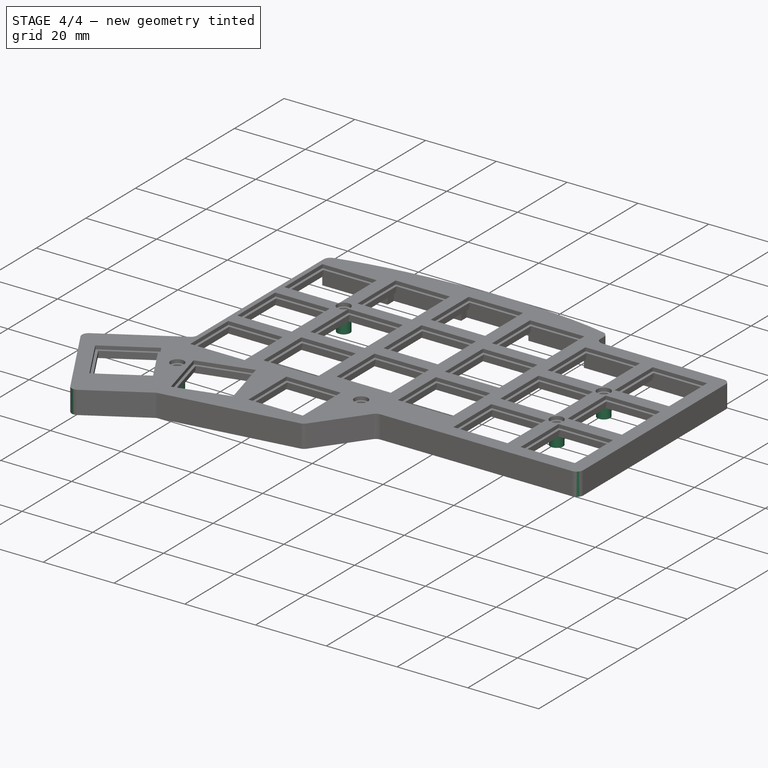
[diagram: stage 4 of 4 — iso view after this stage's code; geometry added in this stage tinted green]
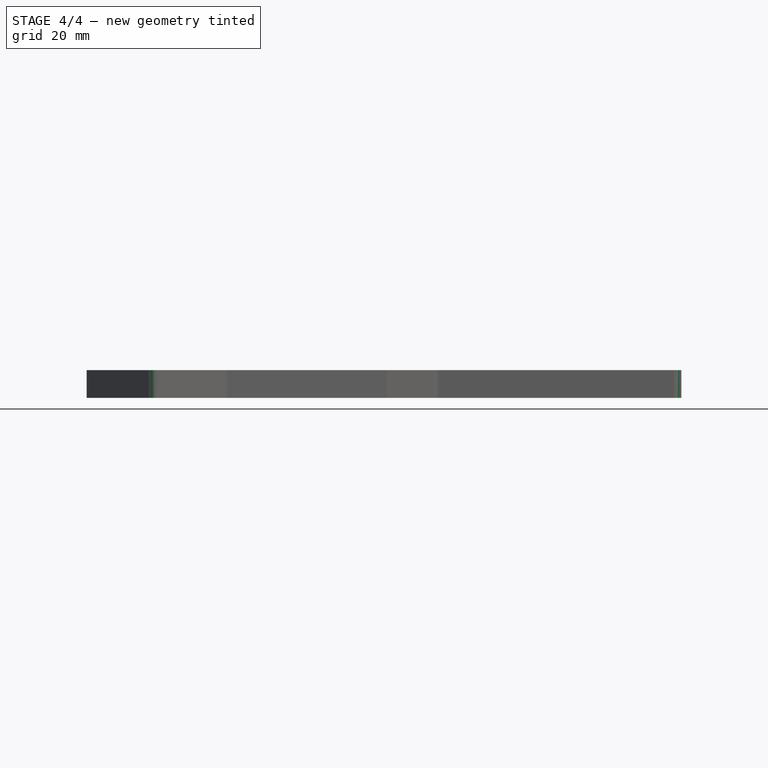
[diagram: stage 4 of 4 — front view after this stage's code; geometry added in this stage tinted green]
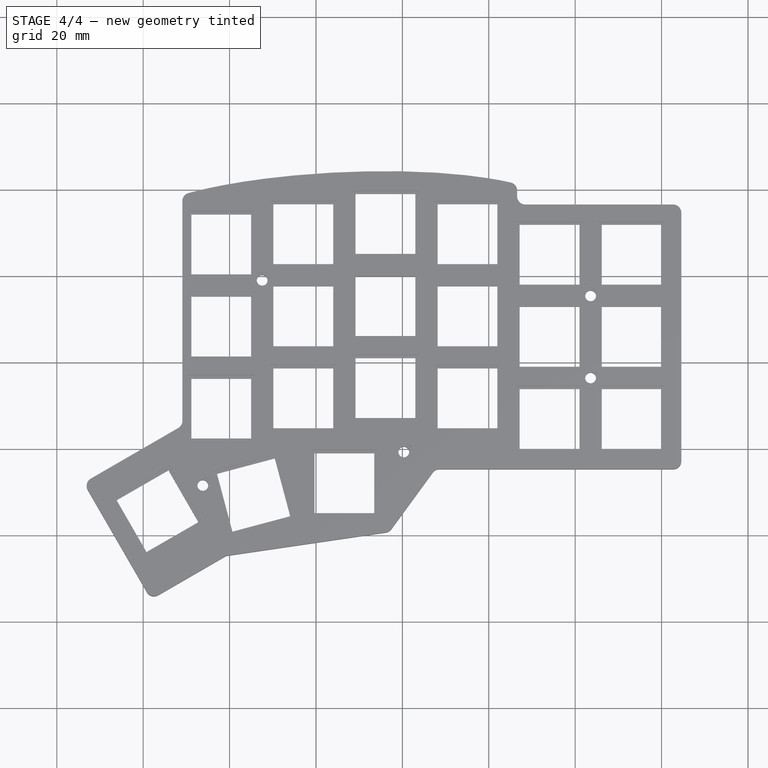
[diagram: stage 4 of 4 — top view after this stage's code; geometry added in this stage tinted green]
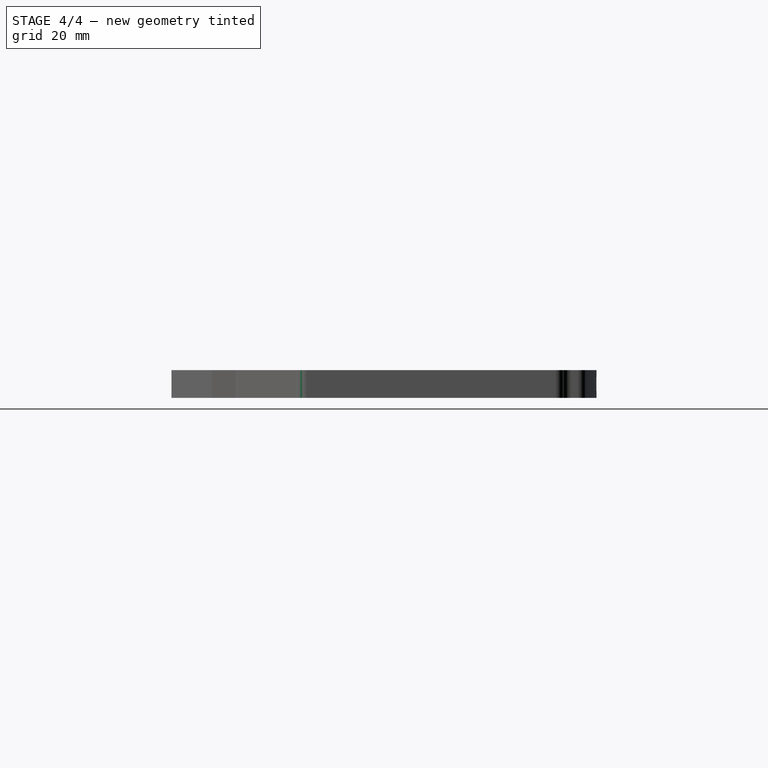
[diagram: stage 4 of 4 — right view after this stage's code; geometry added in this stage tinted green]
FEATURE [Sketcher::SketchObject] Sketch007
  ArcFitTolerance = 1e-06
  AttachmentSupport = -> [Pocket003]
  ExternalGeometry = -> [Pocket003]
  FullyConstrained = true
  MapMode = 5
  Placement = pos=(0,0,0) rot=(1,0,0;3.14159rad)
  Support = -> [Pocket003]
  TreeRank = 27
  sketch-geometry (5):
    g0: Circle CenterX=-106.201 CenterY=8.45994 CenterZ=0 NormalX=0 NormalY=0 NormalZ=1 AngleXU=0 Radius=1.8
    g1: Circle CenterX=-92.4562 CenterY=-39.0423 CenterZ=0 NormalX=0 NormalY=0 NormalZ=1 AngleXU=0 Radius=1.8
    g2: Circle CenterX=-59.681 CenterY=0.70994 CenterZ=0 NormalX=0 NormalY=0 NormalZ=1 AngleXU=0 Radius=1.8
    g3: Circle CenterX=-16.4264 CenterY=-16.4262 CenterZ=0 NormalX=0 NormalY=0 NormalZ=1 AngleXU=0 Radius=1.8
    g4: Circle CenterX=-16.4264 CenterY=-35.4275 CenterZ=0 NormalX=0 NormalY=0 NormalZ=1 AngleXU=0 Radius=1.8
  constraints (10):
    c: Coincident(g0,g-4)
    c: Coincident(g1,g-3)
    c: Coincident(g2,g-5)
    c: Coincident(g3,g-6)
    c: Coincident(g4,g-7)
    c: Equal(g3,g4)
    c: Equal(g4,g2)
    c: Equal(g2,g0)
    c: Equal(g0,g1)
    c: Diameter(g1) = 3.6
FEATURE [PartDesign::Pad] Pad003
  BaseFeature = -> Pocket003
  ClaimChildren = false
  Direction = (1,1,1)
  Fit = 0
  FitJoin = 0
  InnerFit = 0
  InnerFitJoin = 0
  InnerTaperAngle = 0
  InnerTaperAngleRev = 0
  Length = 10
  Length2 = 100
  Linearize = true
  NewSolid = false
  Profile = -> Sketch007
  Suppress = false
  TreeRank = 28
  Type = 3
  UpToFace = -> Pocket003 [Face138]
  _ProfileBasedVersion = 1
FEATURE [PartDesign::Fillet] Fillet
  Base = -> Pad003 [Edge546,Edge921,Edge923,Edge925,Edge927,Edge929,Edge931,Edge933,Edge935,Edge563,Edge125]
  BaseFeature = -> Pad003
  NewSolid = false
  Radius = 1.9
  SupportTransform = false
  Suppress = false
  TreeRank = 29
FEATURE [PartDesign::Body] Body  label="faceplate"
  AutoGroupSolids = false
  ClaimAllChildren = false
  ExportMode = 0
  Group = -> [Sketch,Pad,Sketch001,Pocket,Sketch002,Pocket001,Sketch003,Wrap,Pad001,Sketch005,Sketch004,Pocket002,Pad002,Sketch006,Pocket003,Sketch007,Pad003,Fillet]
  Origin = -> Origin
  Tip = -> Fillet
  TreeRank = 10
  _ExportChildren = -> [Pad,Pocket,Pocket001,Sketch003,Wrap,Pad001,Pocket002,Pad002,Pocket003,Pad003,Fillet]
  _GroupVersion = 1
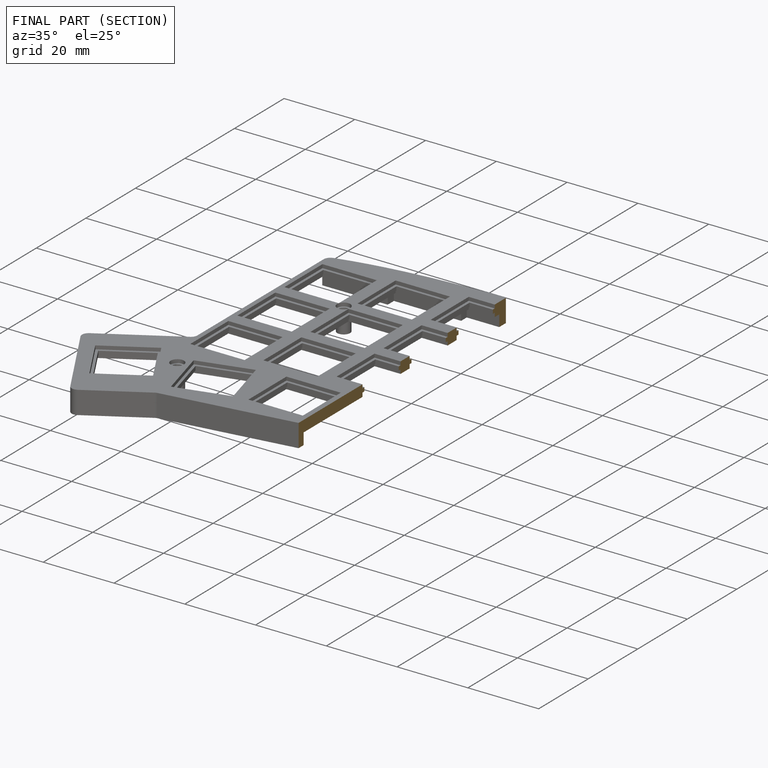
[diagram: finished part — half-section view (interior)]
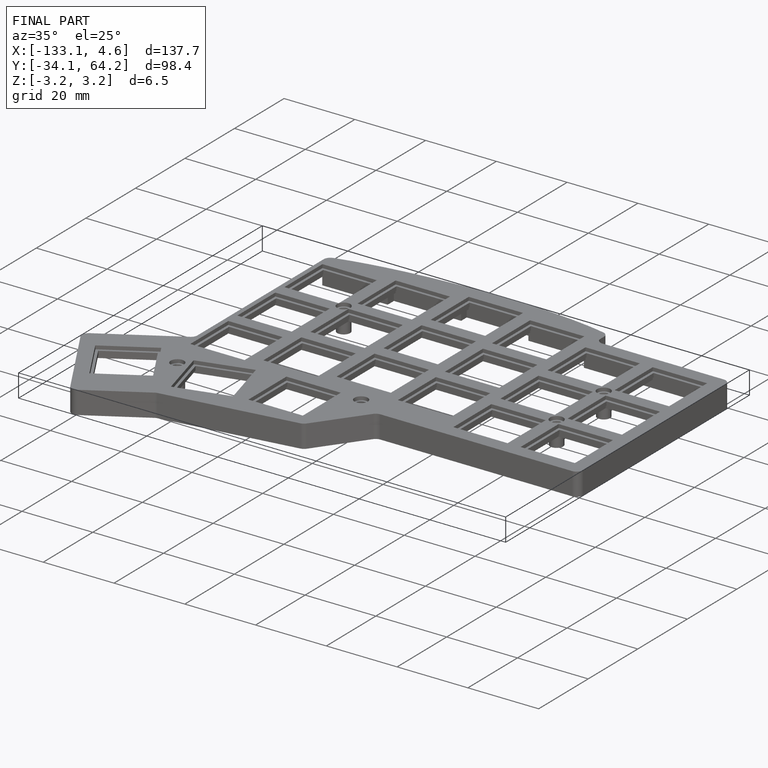
[diagram: finished part — iso view with bounding-box wireframe]
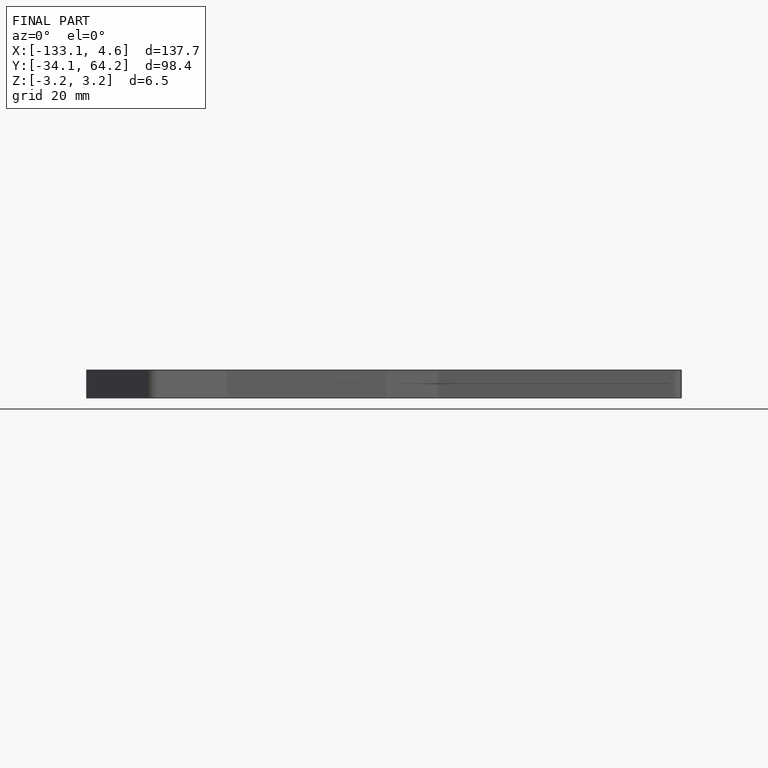
[diagram: finished part — front view with bounding-box wireframe]
